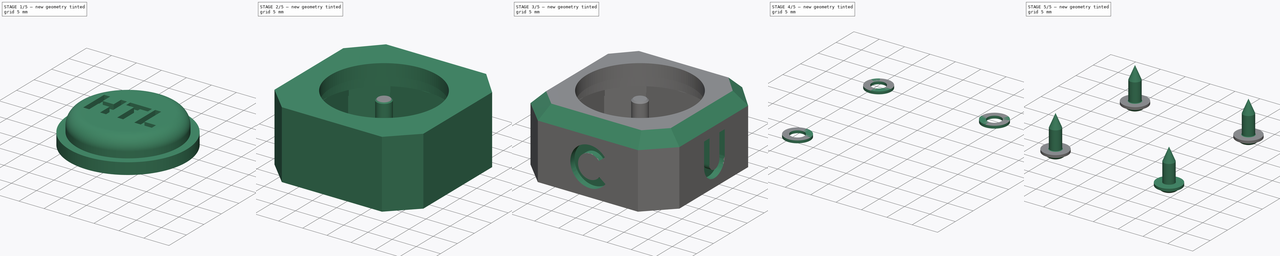
[diagram: build sequence overview — one tinted view per stage of 5, left to right]
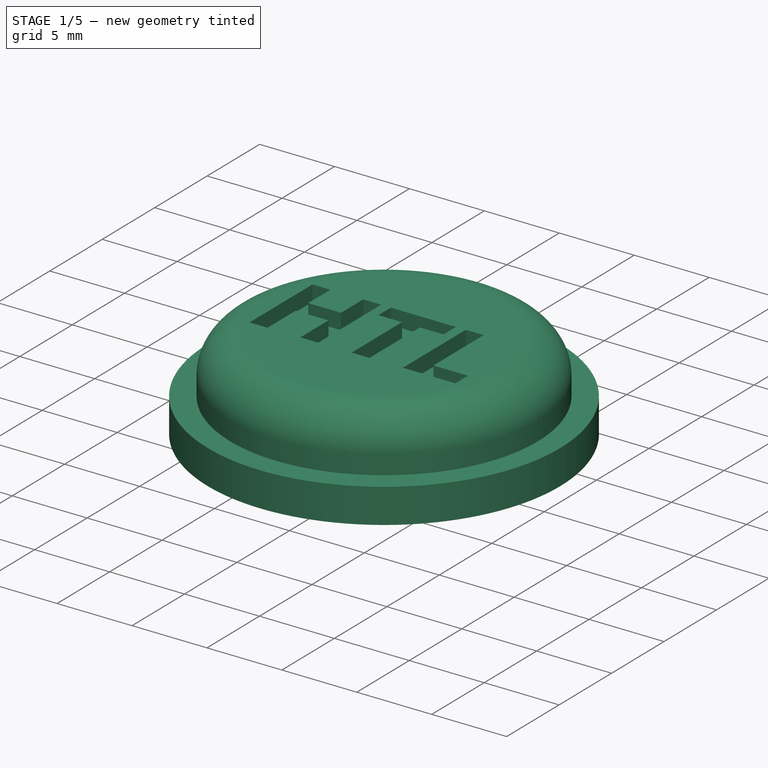
[diagram: stage 1 of 5 — iso view after this stage's code; geometry added in this stage tinted green]
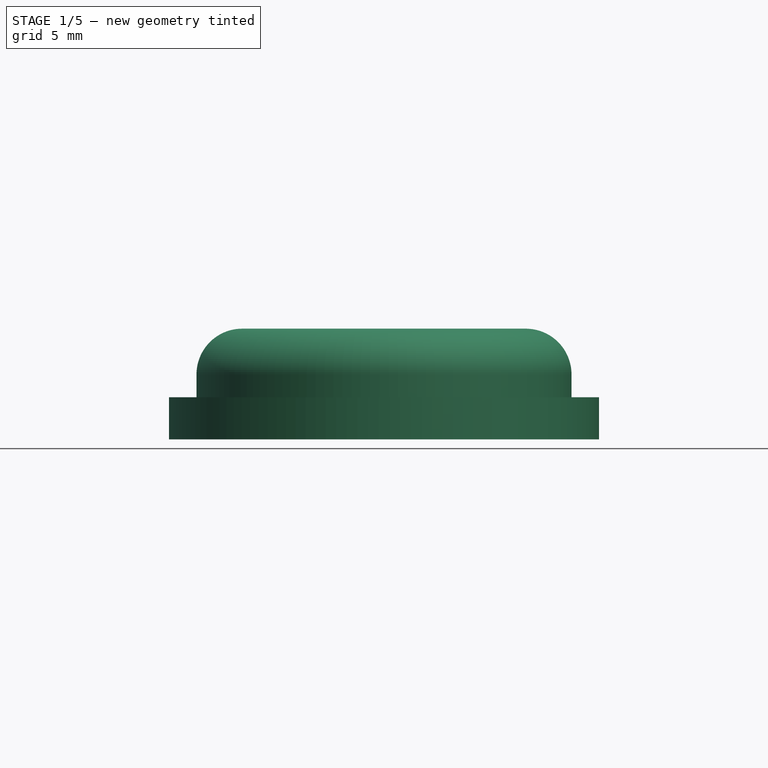
[diagram: stage 1 of 5 — front view after this stage's code; geometry added in this stage tinted green]
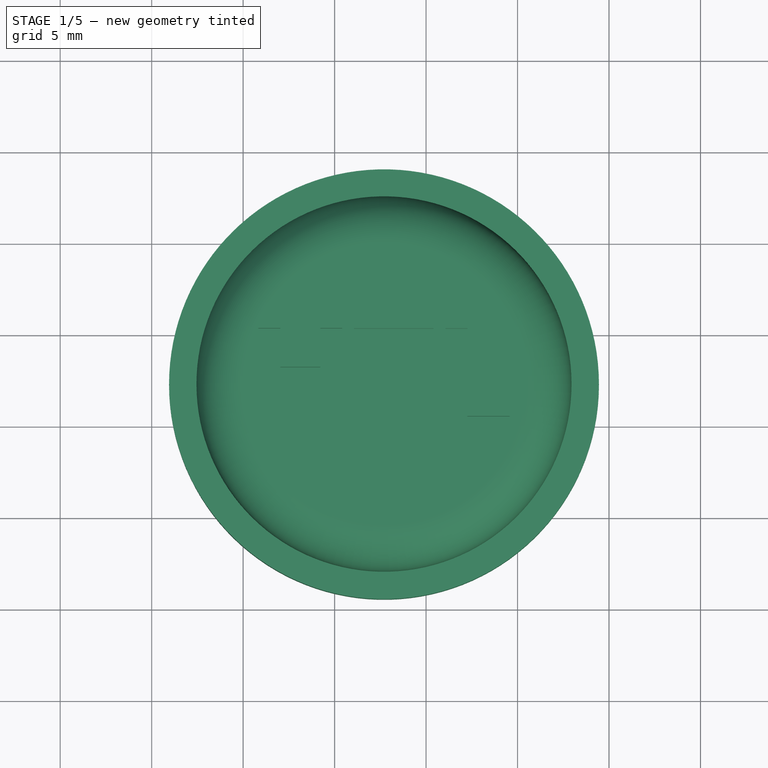
[diagram: stage 1 of 5 — top view after this stage's code; geometry added in this stage tinted green]
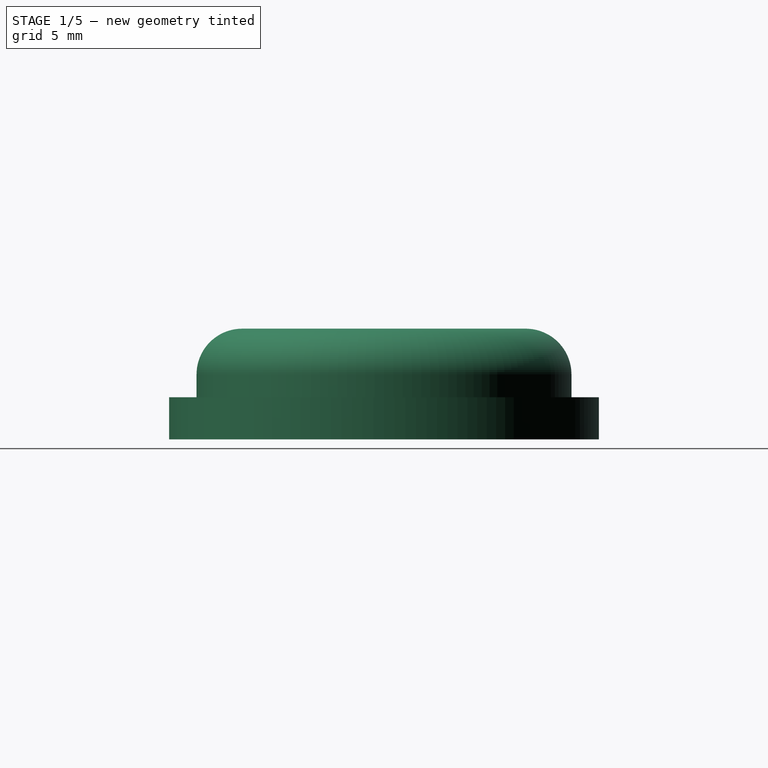
[diagram: stage 1 of 5 — right view after this stage's code; geometry added in this stage tinted green]
FCSTD DOCUMENT  (FreeCAD 1.0R39319 (Git))
Label: housing
License: Creative Commons Attribution-NonCommercial-ShareAlike 4.0
LicenseURL: https://creativecommons.org/licenses/by-nc-sa/4.0/
objects: Part::Feature×24, Sketcher::SketchObject×12, PartDesign::Pocket×12, App::Part×11, App::DocumentObjectGroupPython×10, Part::FeaturePython×9, Part::Part2DObjectPython×5, PartDesign::Pad×4, PartDesign::Body×3, Spreadsheet::Sheet×1, PartDesign::Chamfer×1, TechDraw::DrawSVGTemplate×1, TechDraw::DrawProjGroupItem×1, TechDraw::DrawPage×1, PartDesign::Fillet×1, PartDesign::CoordinateSystem×1
note: 120 computed .brp shape members not serialized (recipe doc carries the construction recipe); baked Part::Feature solids carry a one-line shape summary decoded from their .brp

FEATURE [Sketcher::SketchObject] Sketch008
  ArcFitTolerance = 1e-06
  AttachmentOffset = pos=(0,0,4.4) rot=(0,0,1;0rad)
  AttachmentSupport = -> [XY_Plane015]
  FullyConstrained = true
  MakeInternals = false
  MapMode = 5
  Placement = pos=(0,0,4.4) rot=(0,0,1;0rad)
  expr: .AttachmentOffset.Base.z = <<Parameter>>.Housing_Height - <<Parameter>>.Housing_Offset - <<Parameter>>.Housing_Floor_Thickness - <<Parameter>>.Housing_Tolerance
  expr: Constraints[0] = <<Parameter>>.PCB_Width / 2
  expr: Constraints[1] = <<Parameter>>.PCB_Length / 2
  expr: Constraints[2] = <<Parameter>>.Button_Inlay - <<Parameter>>.Button_Tolerance
  sketch-geometry (1):
    g0: Circle CenterX=12.7 CenterY=-12.7 CenterZ=0 NormalX=0 NormalY=0 NormalZ=1 AngleXU=0 Radius=11.75
  constraints (3):
    c: DistanceX(g-1,g0) = 12.7
    c: DistanceY(g0,g-1) = 12.7
    c: Diameter(g0) = 23.5
FEATURE [PartDesign::Pad] Pad002
  Direction = (0,0,1)
  Length = 2.3
  Length2 = 10
  Profile = -> Sketch008
  ReferenceAxis = -> Sketch008 [N_Axis]
  Refine = true
  Reversed = true
  Suppressed = false
  Type = 0
  expr: Length = <<Parameter>>.Button_Base - <<Parameter>>.Housing_Tolerance
FEATURE [Sketcher::SketchObject] Sketch009
  ArcFitTolerance = 1e-06
  AttachmentOffset = pos=(0,0,4.4) rot=(0,0,1;0rad)
  AttachmentSupport = -> [XY_Plane015]
  FullyConstrained = true
  MakeInternals = false
  MapMode = 5
  Placement = pos=(0,0,4.4) rot=(0,0,1;0rad)
  expr: .AttachmentOffset.Base.z = <<Parameter>>.Housing_Height - <<Parameter>>.Housing_Offset - <<Parameter>>.Housing_Floor_Thickness - <<Parameter>>.Housing_Tolerance
  expr: Constraints[0] = <<Parameter>>.PCB_Width / 2
  expr: Constraints[1] = <<Parameter>>.PCB_Length / 2
  expr: Constraints[2] = <<Parameter>>.Button_Diameter - <<Parameter>>.Button_Tolerance
  sketch-geometry (1):
    g0: Circle CenterX=12.7 CenterY=-12.7 CenterZ=0 NormalX=0 NormalY=0 NormalZ=1 AngleXU=0 Radius=10.25
  constraints (3):
    c: DistanceX(g-1,g0) = 12.7
    c: DistanceY(g0,g-1) = 12.7
    c: Diameter(g0) = 20.5
FEATURE [PartDesign::Pad] Pad003
  BaseFeature = -> Pad002
  Direction = (0,0,1)
  Length = 3.75
  Length2 = 10
  Profile = -> Sketch009
  ReferenceAxis = -> Sketch009 [N_Axis]
  Refine = true
  Suppressed = false
  Type = 0
  expr: Length = <<Parameter>>.Housing_Floor_Thickness * 3 / 2
FEATURE [Sketcher::SketchObject] Sketch010
  ArcFitTolerance = 1e-06
  AttachmentOffset = pos=(0,0,2.1) rot=(0,0,1;0rad)
  AttachmentSupport = -> [XY_Plane015]
  FullyConstrained = true
  MakeInternals = false
  MapMode = 5
  Placement = pos=(0,0,2.1) rot=(0,0,1;0rad)
  expr: .AttachmentOffset.Base.z = <<Parameter>>.Housing_Height - <<Parameter>>.Housing_Offset - <<Parameter>>.Housing_Floor_Thickness - <<Parameter>>.Button_Base
  expr: Constraints[0] = <<Parameter>>.PCB_Width / 2
  expr: Constraints[1] = <<Parameter>>.PCB_Length / 2
  expr: Constraints[2] = <<Parameter>>.Button_Shaft_Diameter
  sketch-geometry (1):
    g0: Circle CenterX=12.7 CenterY=-12.7 CenterZ=0 NormalX=0 NormalY=0 NormalZ=1 AngleXU=0 Radius=1.75
  constraints (3):
    c: DistanceX(g-1,g0) = 12.7
    c: DistanceY(g0,g-1) = 12.7
    c: Diameter(g0) = 3.5
FEATURE [Part::Part2DObjectPython] ShapeString004  # Draft 2D object (typed FeaturePython)
  FontFile = ./Black Future.otf
  Fuse = false
  Justification = 4
  JustificationReference = 0
  KeepLeftMargin = false
  MakeFace = true
  ObliqueAngle = 0
  Placement = pos=(12.7,-12.7,8.35) rot=(0,0,1;0rad)
  ScaleToSize = true
  Size = 6
  String = HTL
  Tracking = 0
  expr: .Placement.Base.x = <<Parameter>>.PCB_Width / 2
  expr: .Placement.Base.y = -<<Parameter>>.PCB_Length / 2
  expr: .Placement.Base.z = <<Parameter>>.Housing_Height - <<Parameter>>.Housing_Offset + <<Parameter>>.Housing_Floor_Thickness / 2
  expr: Size = <<Parameter>>.Housing_Text_HTL_Size
  expr: String = <<Parameter>>.Housing_Text_HTL
FEATURE [TechDraw::DrawSVGTemplate] Template
  Height = 210
  Orientation = 1
  Template = C:/Program Files/FreeCAD/data/Mod/TechDraw/Templates/Default_Template_A4_Landscape.svg
  Width = 297
FEATURE [TechDraw::DrawProjGroupItem] View
  CoarseView = false
  Direction = (0,0,1)
  Focus = 100
  HardHidden = false
  IsoCount = 0
  IsoHidden = false
  IsoVisible = false
  LockPosition = false
  Perspective = false
  Rotation = 0
  RotationVector = (1,0,0)
  ScaleType = 0
  ScrubCount = 0
  SeamHidden = false
  SeamVisible = false
  SmoothHidden = false
  SmoothVisible = true
  Source = -> [Body001]
  Type = 0
  X = 148.5
  XDirection = (1,0,0)
  Y = 105
FEATURE [TechDraw::DrawPage] Page  label="Acrylglass_Laser"
  KeepUpdated = true
  NextBalloonIndex = 1
  ProjectionType = 0
  Template = -> Template
  Views = -> [View]
FEATURE [PartDesign::Pocket] Pocket011
  BaseFeature = -> Pad003
  Direction = (0,0,-1)
  Length = 3.5
  Length2 = 5
  Profile = -> Sketch010
  ReferenceAxis = -> Sketch010 [N_Axis]
  Refine = true
  Reversed = true
  Suppressed = false
  Type = 0
  expr: Length = <<Parameter>>.Button_Shaft_Length
FEATURE [PartDesign::Fillet] Fillet
  Base = -> Pocket011 [Edge7]
  BaseFeature = -> Pocket011
  Radius = 2.5
  Refine = true
  SupportTransform = false
  Suppressed = false
  UseAllEdges = false
  expr: Radius = <<Parameter>>.Housing_Floor_Thickness
FEATURE [PartDesign::Pocket] Pocket012
  BaseFeature = -> Fillet
  Direction = (0,0,-1)
  Length = 1.25
  Length2 = 5
  Profile = -> ShapeString004
  ReferenceAxis = -> ShapeString004 [N_Axis]
  Refine = true
  Suppressed = false
  Type = 0
  expr: Length = <<Parameter>>.Text_Depth
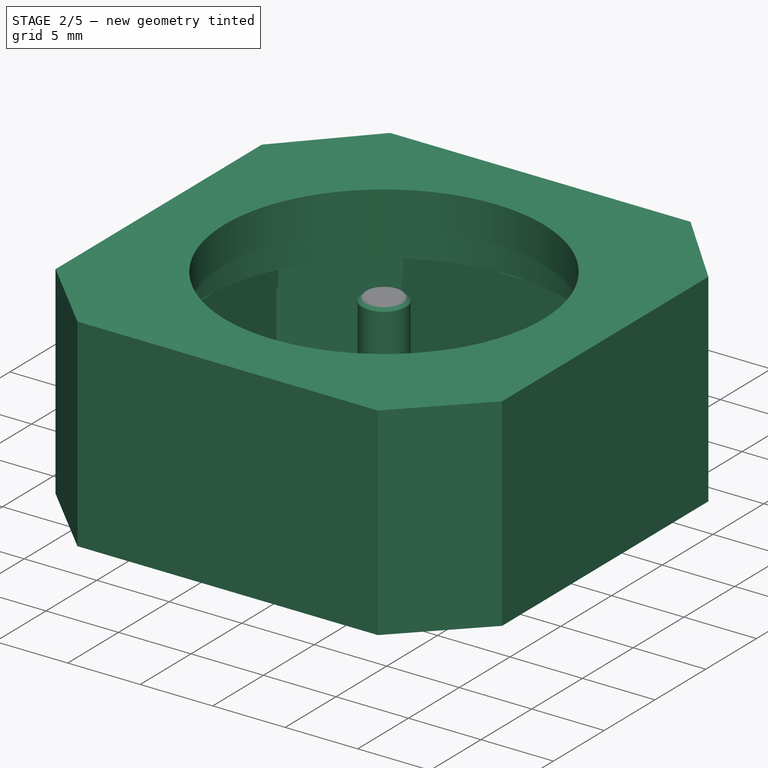
[diagram: stage 2 of 5 — iso view after this stage's code; geometry added in this stage tinted green]
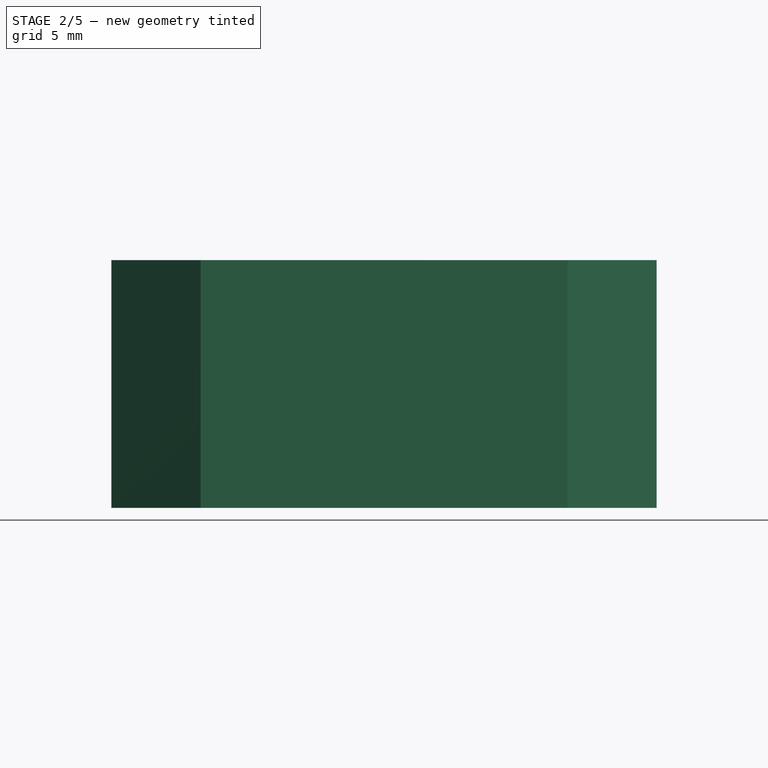
[diagram: stage 2 of 5 — front view after this stage's code; geometry added in this stage tinted green]
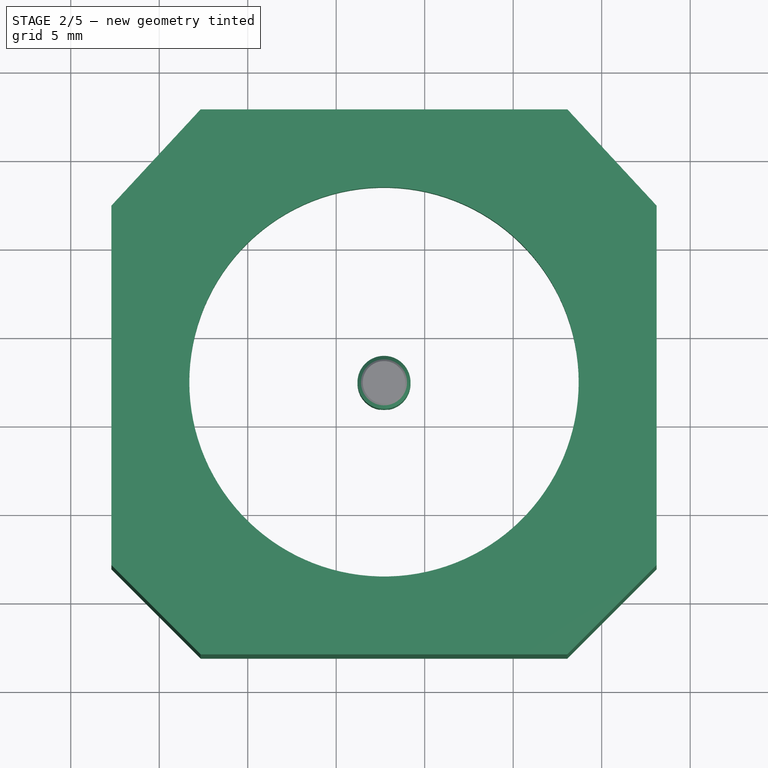
[diagram: stage 2 of 5 — top view after this stage's code; geometry added in this stage tinted green]
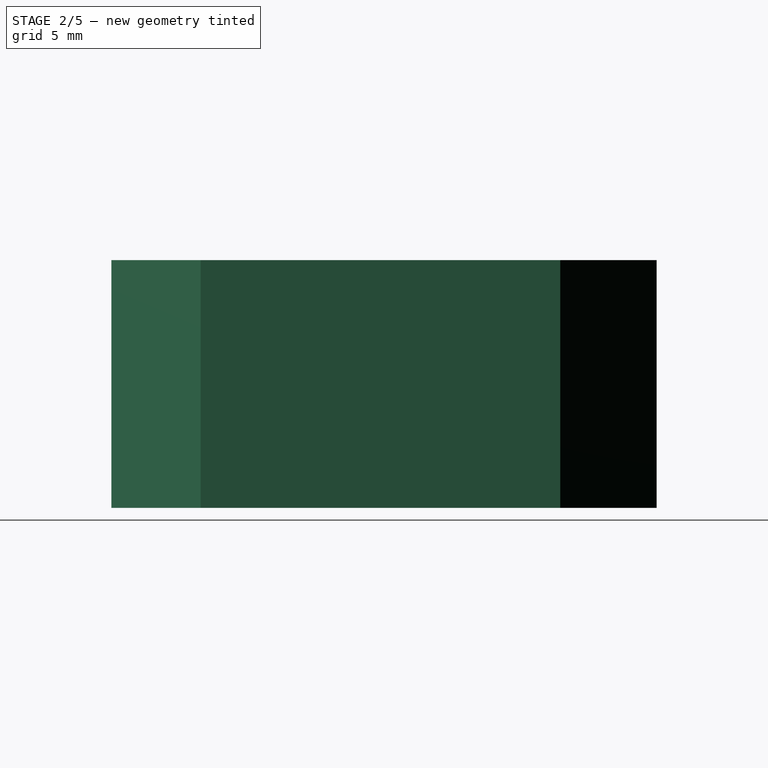
[diagram: stage 2 of 5 — right view after this stage's code; geometry added in this stage tinted green]
FEATURE [Spreadsheet::Sheet] Spreadsheet  label="Parameter"
  cells = A1='PCB; A2='Width; B2(PCB_Width)=25.4; A3='Length; B3(PCB_Length)=25.4; A4='Thickness; B4(PCB_Thickness)=2; A5='Corner; B5(PCB_Corner)=5.08; A7='Housing; D7='Button; G7='Hole; J7='Acrylglass; A8='Border; B8(Housing_Border)=2.5; D8='Base; E8(Button_Base)=2.5; G8='Diameter; H8(Hole_Diameter)=1.25; J8='Tolerance; K8(Acrylglass_Tolerance)=0.1; A9='Tolerance; B9(Housing_Tolerance)=0.2; D9='Diameter; E9(Button_Diameter)=22; G9='Depth; H9(Hole_Depth)==Housing_Offset; J9='Thickness; K9(Acrylglass_Thickness)=1.5; A10='Battery_Tolerance; B10(Battery_Tolerance)=0.2; D10='Inlay; E10(Button_Inlay)=25; A11='Floor_Thickness; B11(Housing_Floor_Thickness)=2.5; D11='Tolerance; E11(Button_Tolerance)=1.5; A12='Offset; B12(Housing_Offset)==5.2 + Acrylglass_Thickness + Battery_Tolerance; D12='Shaft_Diameter; E12(Button_Shaft_Diameter)=3.5; A13='Inlay; B13(Housing_Inlay)=1.25; D13='Shaft_Length; E13(Button_Shaft_Length)=3.5; A14='PCB_Inlay; B14(Housing_PCB_Inlay)=0.25; A15='Height; B15(Housing_Height)=14; A17='Text; B17(Housing_Text_C)='C; C17(Housing_Text_U)='U; D17(Housing_Text_B)='B; E17(Housing_Text_E)='E; F17(Housing_Text_HTL)='HTL; A18='Size; B18(Housing_Text_Size)=8; F18(Housing_Text_HTL_Size)=6; A19='Depth; B19(Text_Depth)=1.25
FEATURE [Sketcher::SketchObject] Sketch
  ArcFitTolerance = 1e-06
  AttachmentOffset = pos=(0,0,-6.9) rot=(0,0,1;0rad)
  AttachmentSupport = -> [XY_Plane012]
  FullyConstrained = true
  MakeInternals = false
  MapMode = 5
  Placement = pos=(0,0,-6.9) rot=(0,0,1;0rad)
  expr: .AttachmentOffset.Base.z = -<<Parameter>>.Housing_Offset
  expr: Constraints[16] = <<Parameter>>.PCB_Corner / 2 - <<Parameter>>.Housing_Tolerance
  expr: Constraints[17] = <<Parameter>>.PCB_Corner / 2 + <<Parameter>>.Housing_Tolerance
  expr: Constraints[18] = <<Parameter>>.Housing_Border + <<Parameter>>.Housing_Tolerance
  expr: Constraints[19] = <<Parameter>>.Housing_Border + <<Parameter>>.Housing_Tolerance
  expr: Constraints[20] = <<Parameter>>.PCB_Width - <<Parameter>>.PCB_Corner / 2 + <<Parameter>>.Housing_Tolerance
  expr: Constraints[21] = <<Parameter>>.PCB_Length + <<Parameter>>.Housing_Border + <<Parameter>>.Housing_Tolerance
  expr: Constraints[22] = <<Parameter>>.PCB_Length - <<Parameter>>.PCB_Corner / 2 + <<Parameter>>.Housing_Tolerance
  expr: Constraints[23] = <<Parameter>>.PCB_Width + <<Parameter>>.Housing_Border + <<Parameter>>.Housing_Tolerance
  sketch-geometry (8):
    g0: LineSegment StartX=-2.7 StartY=-2.74 StartZ=0 EndX=-2.7 EndY=-23.06 EndZ=0
    g1: LineSegment StartX=2.34 StartY=-28.1 StartZ=0 EndX=23.06 EndY=-28.1 EndZ=0
    g2: LineSegment StartX=28.1 StartY=-23.06 StartZ=0 EndX=28.1 EndY=-2.74 EndZ=0
    g3: LineSegment StartX=23.06 StartY=2.7 StartZ=0 EndX=2.34 EndY=2.7 EndZ=0
    g4: LineSegment StartX=-2.7 StartY=-2.74 StartZ=0 EndX=2.34 EndY=2.7 EndZ=0
    g5: LineSegment StartX=28.1 StartY=-2.74 StartZ=0 EndX=23.06 EndY=2.7 EndZ=0
    g6: LineSegment StartX=28.1 StartY=-23.06 StartZ=0 EndX=23.06 EndY=-28.1 EndZ=0
    g7: LineSegment StartX=-2.7 StartY=-23.06 StartZ=0 EndX=2.34 EndY=-28.1 EndZ=0
  constraints (24):
    c: Vertical(g0)
    c: Vertical(g2)
    c: Horizontal(g1)
    c: Horizontal(g3)
    c: Coincident(g0,g4)
    c: Coincident(g3,g4)
    c: Coincident(g3,g5)
    c: Coincident(g2,g5)
    c: Coincident(g2,g6)
    c: Coincident(g1,g6)
    c: Coincident(g1,g7)
    c: Coincident(g0,g7)
    c: Horizontal(g0,g2)
    c: Vertical(g3,g1)
    c: Horizontal(g0,g2)
    c: Vertical(g1,g3)
    c: DistanceX(g-1,g3) = 2.34
    c: DistanceY(g0,g-1) = 2.74
    c: DistanceY(g-1,g3) = 2.7
    c: DistanceX(g0,g-1) = 2.7
    c: DistanceX(g-1,g3) = 23.06
    c: DistanceY(g1,g-1) = 28.1
    c: DistanceY(g0,g-1) = 23.06
    c: DistanceX(g-1,g2) = 28.1
FEATURE [PartDesign::Pad] Pad
  Direction = (0,0,1)
  Length = 14
  Length2 = 10
  Profile = -> Sketch
  ReferenceAxis = -> Sketch [N_Axis]
  Refine = true
  Suppressed = false
  Type = 0
  expr: Length = <<Parameter>>.Housing_Height
FEATURE [Sketcher::SketchObject] Sketch001
  ArcFitTolerance = 1e-06
  AttachmentOffset = pos=(0,0,-6.9) rot=(0,0,1;0rad)
  AttachmentSupport = -> [XY_Plane012]
  FullyConstrained = true
  MakeInternals = false
  MapMode = 5
  Placement = pos=(0,0,-6.9) rot=(0,0,1;0rad)
  expr: .AttachmentOffset.Base.z = -<<Parameter>>.Housing_Offset
  expr: Constraints[12] = <<Parameter>>.Housing_Tolerance
  expr: Constraints[13] = <<Parameter>>.Housing_Tolerance
  expr: Constraints[18] = <<Parameter>>.PCB_Width - <<Parameter>>.PCB_Corner + <<Parameter>>.Housing_Tolerance
  expr: Constraints[19] = <<Parameter>>.PCB_Length - <<Parameter>>.PCB_Corner + <<Parameter>>.Housing_Tolerance
  expr: Constraints[20] = <<Parameter>>.PCB_Corner - <<Parameter>>.Housing_Tolerance
  expr: Constraints[21] = <<Parameter>>.PCB_Corner - <<Parameter>>.Housing_Tolerance
  expr: Constraints[22] = <<Parameter>>.PCB_Width + <<Parameter>>.Housing_Tolerance
  expr: Constraints[23] = <<Parameter>>.PCB_Width + <<Parameter>>.Housing_Tolerance
  sketch-geometry (8):
    g0: LineSegment StartX=-0.2 StartY=-4.88 StartZ=0 EndX=-0.2 EndY=-20.52 EndZ=0
    g1: LineSegment StartX=4.88 StartY=-25.6 StartZ=0 EndX=20.52 EndY=-25.6 EndZ=0
    g2: LineSegment StartX=25.6 StartY=-20.52 StartZ=0 EndX=25.6 EndY=-4.88 EndZ=0
    g3: LineSegment StartX=20.52 StartY=0.2 StartZ=0 EndX=4.88 EndY=0.2 EndZ=0
    g4: LineSegment StartX=-0.2 StartY=-4.88 StartZ=0 EndX=4.88 EndY=0.2 EndZ=0
    g5: LineSegment StartX=20.52 StartY=0.2 StartZ=0 EndX=25.6 EndY=-4.88 EndZ=0
    g6: LineSegment StartX=20.52 StartY=-25.6 StartZ=0 EndX=25.6 EndY=-20.52 EndZ=0
    g7: LineSegment StartX=4.88 StartY=-25.6 StartZ=0 EndX=-0.2 EndY=-20.52 EndZ=0
  constraints (24):
    c: Vertical(g0)
    c: Vertical(g2)
    c: Horizontal(g1)
    c: Horizontal(g3)
    c: Coincident(g0,g7)
    c: Coincident(g1,g7)
    c: Coincident(g1,g6)
    c: Coincident(g2,g6)
    c: Coincident(g3,g5)
    c: Coincident(g2,g5)
    c: Coincident(g3,g4)
    c: Coincident(g0,g4)
    c: DistanceX(g0,g-1) = 0.2
    c: DistanceY(g-1,g3) = 0.2
    c: Vertical(g3,g1)
    c: Vertical(g1,g3)
    c: Horizontal(g2,g0)
    c: Horizontal(g0,g2)
    c: DistanceX(g-1,g3) = 20.52
    c: DistanceY(g2,g-1) = 20.52
    c: DistanceX(g-1,g3) = 4.88
    c: DistanceY(g0,g-1) = 4.88
    c: DistanceY(g1,g-1) = 25.6
    c: DistanceX(g-1,g2) = 25.6
FEATURE [PartDesign::Pocket] Pocket
  BaseFeature = -> Pad
  Direction = (0,0,-1)
  Length = 6.9
  Length2 = 5
  Profile = -> Sketch001
  ReferenceAxis = -> Sketch001 [N_Axis]
  Refine = true
  Reversed = true
  Suppressed = false
  Type = 0
  expr: Length = <<Parameter>>.Housing_Offset
FEATURE [Sketcher::SketchObject] Sketch002
  ArcFitTolerance = 1e-06
  AttachmentSupport = -> [XY_Plane012]
  FullyConstrained = true
  MakeInternals = false
  MapMode = 5
  expr: Constraints[12] = <<Parameter>>.PCB_Corner + <<Parameter>>.Housing_PCB_Inlay
  expr: Constraints[13] = <<Parameter>>.Housing_PCB_Inlay
  expr: Constraints[14] = <<Parameter>>.PCB_Corner + <<Parameter>>.Housing_PCB_Inlay
  expr: Constraints[15] = <<Parameter>>.Housing_PCB_Inlay
  expr: Constraints[20] = <<Parameter>>.PCB_Length - <<Parameter>>.PCB_Corner - <<Parameter>>.Housing_PCB_Inlay
  expr: Constraints[21] = <<Parameter>>.PCB_Width - <<Parameter>>.PCB_Corner - <<Parameter>>.Housing_PCB_Inlay
  expr: Constraints[22] = <<Parameter>>.PCB_Length - <<Parameter>>.Housing_PCB_Inlay
  expr: Constraints[23] = <<Parameter>>.PCB_Width - <<Parameter>>.Housing_PCB_Inlay
  sketch-geometry (8):
    g0: LineSegment StartX=0.25 StartY=-5.33 StartZ=0 EndX=0.25 EndY=-20.07 EndZ=0
    g1: LineSegment StartX=5.33 StartY=-25.15 StartZ=0 EndX=20.07 EndY=-25.15 EndZ=0
    g2: LineSegment StartX=25.15 StartY=-20.07 StartZ=0 EndX=25.15 EndY=-5.33 EndZ=0
    g3: LineSegment StartX=20.07 StartY=-0.25 StartZ=0 EndX=5.33 EndY=-0.25 EndZ=0
    g4: LineSegment StartX=0.25 StartY=-5.33 StartZ=0 EndX=5.33 EndY=-0.25 EndZ=0
    g5: LineSegment StartX=20.07 StartY=-0.25 StartZ=0 EndX=25.15 EndY=-5.33 EndZ=0
    g6: LineSegment StartX=25.15 StartY=-20.07 StartZ=0 EndX=20.07 EndY=-25.15 EndZ=0
    g7: LineSegment StartX=5.33 StartY=-25.15 StartZ=0 EndX=0.25 EndY=-20.07 EndZ=0
  constraints (24):
    c: Vertical(g0)
    c: Vertical(g2)
    c: Horizontal(g1)
    c: Horizontal(g3)
    c: Coincident(g0,g4)
    c: Coincident(g3,g4)
    c: Coincident(g3,g5)
    c: Coincident(g2,g5)
    c: Coincident(g2,g6)
    c: Coincident(g1,g6)
    c: Coincident(g1,g7)
    c: Coincident(g0,g7)
    c: DistanceX(g-1,g3) = 5.33
    c: DistanceY(g3,g-1) = 0.25
    c: DistanceY(g0,g-1) = 5.33
    c: DistanceX(g-1,g0) = 0.25
    c: Vertical(g3,g1)
    c: Horizontal(g0,g2)
    c: Vertical(g3,g1)
    c: Horizontal(g0,g2)
    c: DistanceY(g0,g-1) = 20.07
    c: DistanceX(g-1,g3) = 20.07
    c: DistanceY(g1,g-1) = 25.15
    c: DistanceX(g-1,g2) = 25.15
FEATURE [PartDesign::Pocket] Pocket001
  BaseFeature = -> Pocket
  Direction = (0,0,-1)
  Length = 2.1
  Length2 = 5
  Profile = -> Sketch002
  ReferenceAxis = -> Sketch002 [N_Axis]
  Refine = true
  Reversed = true
  Suppressed = false
  Type = 0
  expr: Length = <<Parameter>>.Housing_Height - <<Parameter>>.Housing_Offset - <<Parameter>>.Housing_Floor_Thickness - <<Parameter>>.Button_Base
FEATURE [Sketcher::SketchObject] Sketch003
  ArcFitTolerance = 1e-06
  AttachmentOffset = pos=(0,0,7.1) rot=(0,0,1;0rad)
  AttachmentSupport = -> [XY_Plane012]
  FullyConstrained = true
  MakeInternals = false
  MapMode = 5
  Placement = pos=(0,0,7.1) rot=(0,0,1;0rad)
  expr: .AttachmentOffset.Base.z = <<Parameter>>.Housing_Height - <<Parameter>>.Housing_Offset
  expr: Constraints[0] = <<Parameter>>.PCB_Width / 2
  expr: Constraints[1] = <<Parameter>>.PCB_Length / 2
  expr: Constraints[2] = <<Parameter>>.Button_Diameter
  sketch-geometry (1):
    g0: Circle CenterX=12.7 CenterY=-12.7 CenterZ=0 NormalX=0 NormalY=0 NormalZ=1 AngleXU=0 Radius=11
  constraints (3):
    c: DistanceX(g-1,g0) = 12.7
    c: DistanceY(g0,g-1) = 12.7
    c: Diameter(g0) = 22
FEATURE [PartDesign::Pocket] Pocket002
  BaseFeature = -> Pocket001
  Direction = (0,0,-1)
  Length = 2.5
  Length2 = 5
  Profile = -> Sketch003
  ReferenceAxis = -> Sketch003 [N_Axis]
  Refine = true
  Suppressed = false
  Type = 0
  expr: Length = <<Parameter>>.Housing_Floor_Thickness
FEATURE [Sketcher::SketchObject] Sketch004
  ArcFitTolerance = 1e-06
  AttachmentOffset = pos=(0,0,4.6) rot=(0,0,1;0rad)
  AttachmentSupport = -> [XY_Plane012]
  FullyConstrained = true
  MakeInternals = false
  MapMode = 5
  Placement = pos=(0,0,4.6) rot=(0,0,1;0rad)
  expr: .AttachmentOffset.Base.z = <<Parameter>>.Housing_Height - <<Parameter>>.Housing_Offset - <<Parameter>>.Housing_Floor_Thickness
  expr: Constraints[0] = <<Parameter>>.PCB_Width / 2
  expr: Constraints[1] = <<Parameter>>.PCB_Length / 2
  expr: Constraints[2] = <<Parameter>>.Button_Inlay
  sketch-geometry (1):
    g0: Circle CenterX=12.7 CenterY=-12.7 CenterZ=0 NormalX=0 NormalY=0 NormalZ=1 AngleXU=0 Radius=12.5
  constraints (3):
    c: DistanceX(g-1,g0) = 12.7
    c: DistanceY(g0,g-1) = 12.7
    c: Diameter(g0) = 25
FEATURE [PartDesign::Pocket] Pocket003
  BaseFeature = -> Pocket002
  Direction = (0,0,-1)
  Length = 2.5
  Length2 = 5
  Profile = -> Sketch004
  ReferenceAxis = -> Sketch004 [N_Axis]
  Refine = true
  Suppressed = false
  Type = 0
  expr: Length = <<Parameter>>.Button_Base
FEATURE [PartDesign::Body] Body002  label="Button"
  AllowCompound = false
  Group = -> [Sketch008,Pad002,Sketch009,Pad003,Sketch010,ShapeString004,Pocket011,Fillet,Pocket012]
  Origin = -> Origin015
  Tip = -> Pocket012
FEATURE [Part::FeaturePython] Screw004  label="M3x5-Screw"  # WARN: FeaturePython — macro-defined, semantics opaque (R4)
  BaseObject = -> Body002 [Pocket012.Edge87]
  Diameter = 6
  Invert = true
  LeftHanded = false
  Length = 4
  LengthCustom = 5
  MatchOuter = false
  Offset = 1.5
  OffsetAngle = 0
  Placement = pos=(12.7,-12.7,0.6) rot=(-1,0,0;3.14159rad)
  Thread = false
  Type = 64
  expr: Offset = 1.5
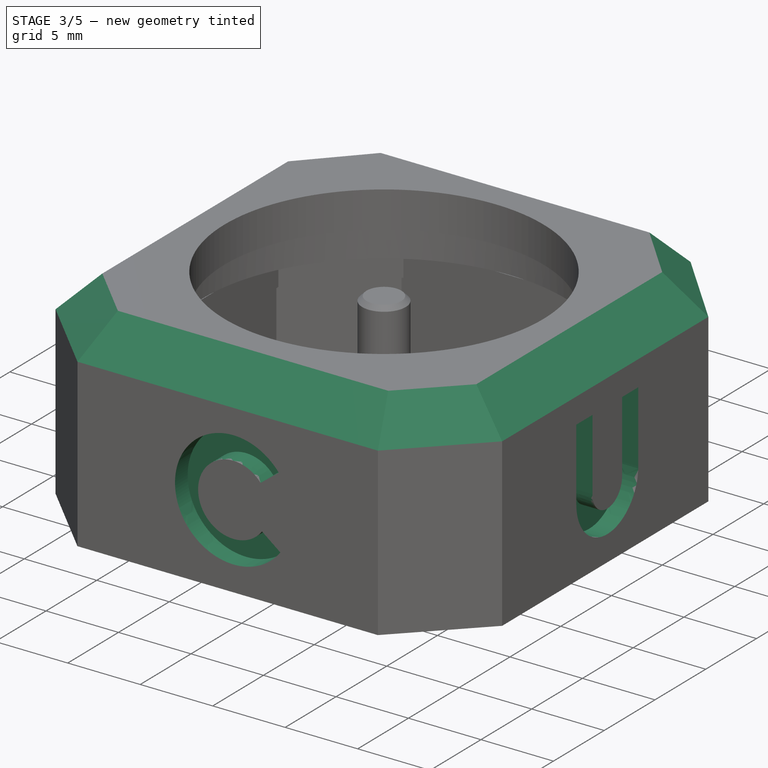
[diagram: stage 3 of 5 — iso view after this stage's code; geometry added in this stage tinted green]
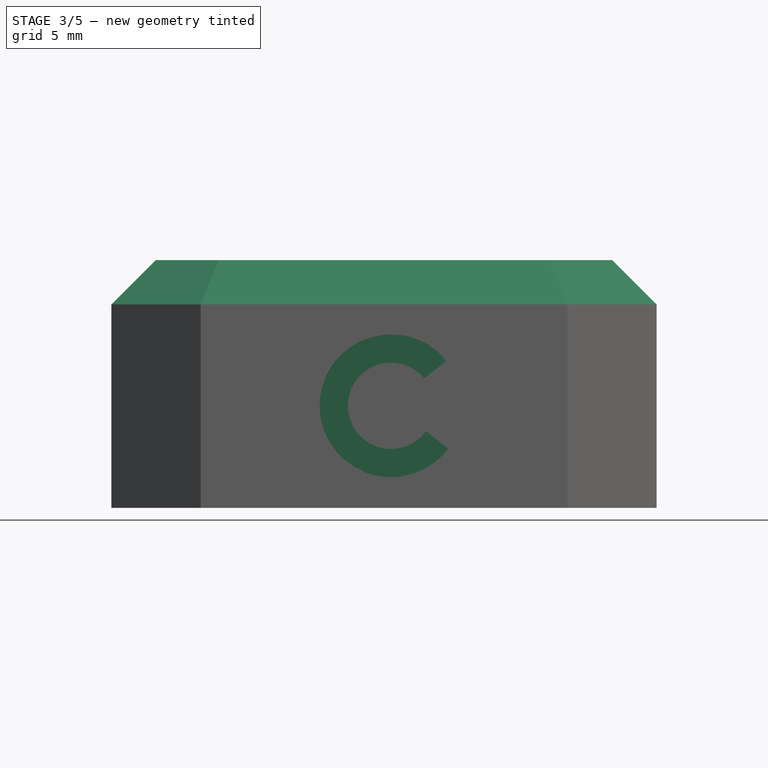
[diagram: stage 3 of 5 — front view after this stage's code; geometry added in this stage tinted green]
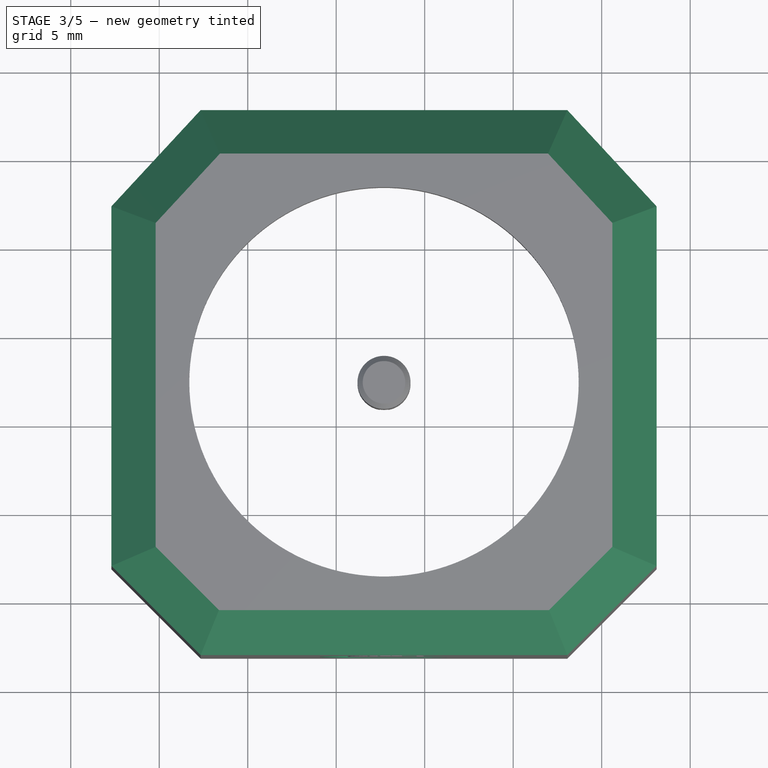
[diagram: stage 3 of 5 — top view after this stage's code; geometry added in this stage tinted green]
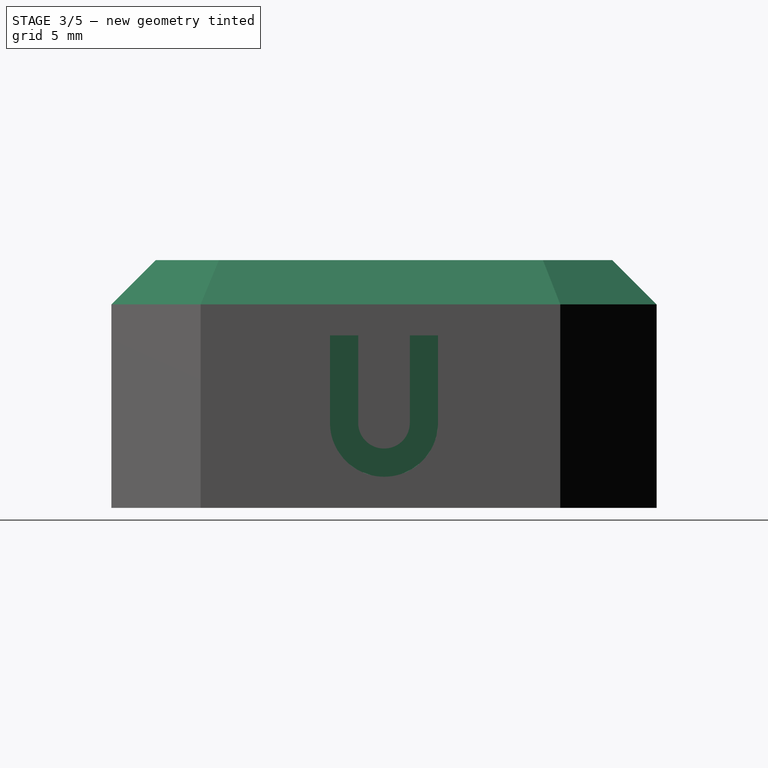
[diagram: stage 3 of 5 — right view after this stage's code; geometry added in this stage tinted green]
FEATURE [Sketcher::SketchObject] Sketch005
  ArcFitTolerance = 1e-06
  AttachmentOffset = pos=(0,0,-6.9) rot=(0,0,1;0rad)
  AttachmentSupport = -> [XY_Plane012]
  FullyConstrained = true
  MakeInternals = false
  MapMode = 5
  Placement = pos=(0,0,-6.9) rot=(0,0,1;0rad)
  expr: .AttachmentOffset.Base.z = -<<Parameter>>.Housing_Offset
  expr: Constraints[10] = <<Parameter>>.PCB_Width - <<Parameter>>.PCB_Corner / 2 + <<Parameter>>.Housing_Border / 2
  expr: Constraints[11] = <<Parameter>>.PCB_Length - <<Parameter>>.PCB_Corner / 2 + <<Parameter>>.Housing_Border / 2
  expr: Constraints[7] = <<Parameter>>.Hole_Diameter
  expr: Constraints[8] = <<Parameter>>.PCB_Corner / 2 - <<Parameter>>.Housing_Border / 2
  expr: Constraints[9] = <<Parameter>>.PCB_Corner / 2 - <<Parameter>>.Housing_Border / 2
  sketch-geometry (4):
    g0: Circle CenterX=1.29 CenterY=-1.29 CenterZ=0 NormalX=0 NormalY=0 NormalZ=1 AngleXU=0 Radius=0.625
    g1: Circle CenterX=24.11 CenterY=-1.29 CenterZ=0 NormalX=0 NormalY=0 NormalZ=1 AngleXU=0 Radius=0.625
    g2: Circle CenterX=24.11 CenterY=-24.11 CenterZ=0 NormalX=0 NormalY=0 NormalZ=1 AngleXU=0 Radius=0.625
    g3: Circle CenterX=1.29 CenterY=-24.11 CenterZ=0 NormalX=0 NormalY=0 NormalZ=1 AngleXU=0 Radius=0.625
  constraints (12):
    c: Vertical(g0,g3)
    c: Vertical(g1,g2)
    c: Horizontal(g0,g1)
    c: Horizontal(g3,g2)
    c: Equal(g0,g1)
    c: Equal(g1,g3)
    c: Equal(g3,g2)
    c: Diameter(g0) = 1.25
    c: DistanceX(g-1,g0) = 1.29
    c: DistanceY(g0,g-1) = 1.29
    c: DistanceX(g-1,g1) = 24.11
    c: DistanceY(g3,g-1) = 24.11
FEATURE [PartDesign::Pocket] Pocket004
  BaseFeature = -> Pocket003
  Direction = (0,0,-1)
  Length = 6.9
  Length2 = 5
  Profile = -> Sketch005
  ReferenceAxis = -> Sketch005 [N_Axis]
  Refine = true
  Reversed = true
  Suppressed = false
  Type = 0
  expr: Length = <<Parameter>>.Hole_Depth
FEATURE [Sketcher::SketchObject] Sketch006
  ArcFitTolerance = 1e-06
  AttachmentOffset = pos=(0,0,-6.9) rot=(0,0,1;0rad)
  AttachmentSupport = -> [XY_Plane012]
  FullyConstrained = true
  MakeInternals = false
  MapMode = 5
  Placement = pos=(0,0,-6.9) rot=(0,0,1;0rad)
  expr: .AttachmentOffset.Base.z = -<<Parameter>>.Housing_Offset
  expr: Constraints[23] = <<Parameter>>.Housing_Tolerance
  expr: Constraints[24] = <<Parameter>>.Housing_Inlay
  expr: Constraints[25] = <<Parameter>>.PCB_Corner - <<Parameter>>.Housing_Tolerance
  expr: Constraints[27] = <<Parameter>>.PCB_Corner - <<Parameter>>.Housing_Tolerance
  expr: Constraints[28] = <<Parameter>>.Housing_Tolerance
  expr: Constraints[29] = <<Parameter>>.PCB_Width - (<<Parameter>>.PCB_Corner - <<Parameter>>.Housing_Tolerance) * 2
  expr: Constraints[32] = <<Parameter>>.PCB_Width + <<Parameter>>.Housing_Tolerance
  expr: Constraints[36] = <<Parameter>>.PCB_Length - (<<Parameter>>.PCB_Corner - <<Parameter>>.Housing_Tolerance) * 2
  expr: Constraints[38] = <<Parameter>>.PCB_Corner - <<Parameter>>.Housing_Tolerance
  expr: Constraints[40] = <<Parameter>>.Housing_Inlay
  expr: Constraints[41] = <<Parameter>>.PCB_Corner
  expr: Constraints[42] = <<Parameter>>.PCB_Corner
  expr: Constraints[44] = <<Parameter>>.PCB_Corner - <<Parameter>>.Housing_Tolerance
  expr: Constraints[45] = <<Parameter>>.Housing_Inlay
  expr: Constraints[46] = <<Parameter>>.Housing_Inlay
  expr: Constraints[47] = <<Parameter>>.Housing_Tolerance
  sketch-geometry (16):
    g0: LineSegment StartX=-1.45 StartY=-4.88 StartZ=0 EndX=-0.2 EndY=-4.88 EndZ=0
    g1: LineSegment StartX=-0.2 StartY=-4.88 StartZ=0 EndX=4.88 EndY=0.2 EndZ=0
    g2: LineSegment StartX=4.88 StartY=0.2 StartZ=0 EndX=4.88 EndY=1.45 EndZ=0
    g3: LineSegment StartX=4.88 StartY=1.45 StartZ=0 EndX=20.52 EndY=1.45 EndZ=0
    g4: LineSegment StartX=20.52 StartY=1.45 StartZ=0 EndX=20.52 EndY=0.2 EndZ=0
    g5: LineSegment StartX=20.52 StartY=0.2 StartZ=0 EndX=25.6 EndY=-4.88 EndZ=0
    g6: LineSegment StartX=25.6 StartY=-4.88 StartZ=0 EndX=26.85 EndY=-4.88 EndZ=0
    g7: LineSegment StartX=26.85 StartY=-4.88 StartZ=0 EndX=26.85 EndY=-20.52 EndZ=0
    g8: LineSegment StartX=26.85 StartY=-20.52 StartZ=0 EndX=25.6 EndY=-20.52 EndZ=0
    g9: LineSegment StartX=25.6 StartY=-20.52 StartZ=0 EndX=20.52 EndY=-25.6 EndZ=0
    g10: LineSegment StartX=20.52 StartY=-25.6 StartZ=0 EndX=20.52 EndY=-26.85 EndZ=0
    g11: LineSegment StartX=20.52 StartY=-26.85 StartZ=0 EndX=4.88 EndY=-26.85 EndZ=0
    g12: LineSegment StartX=4.88 StartY=-26.85 StartZ=0 EndX=4.88 EndY=-25.6 EndZ=0
    g13: LineSegment StartX=4.88 StartY=-25.6 StartZ=0 EndX=-0.2 EndY=-20.5378 EndZ=0
    g14: LineSegment StartX=-0.2 StartY=-20.5378 StartZ=0 EndX=-1.45 EndY=-20.5378 EndZ=0
    g15: LineSegment StartX=-1.45 StartY=-20.5378 StartZ=0 EndX=-1.45 EndY=-4.88 EndZ=0
  constraints (48):
    c: Horizontal(g0)
    c: Coincident(g0,g1)
    c: Coincident(g1,g2)
    c: Coincident(g2,g3)
    c: Horizontal(g3)
    c: Coincident(g3,g4)
    c: Coincident(g4,g5)
    c: Coincident(g5,g6)
    c: Coincident(g6,g7)
    c: Vertical(g7)
    c: Coincident(g7,g8)
    c: Coincident(g8,g9)
    c: Coincident(g9,g10)
    c: Vertical(g10)
    c: Coincident(g10,g11)
    c: Horizontal(g11)
    c: Coincident(g11,g12)
    c: Coincident(g12,g13)
    c: Coincident(g13,g14)
    c: Horizontal(g14)
    c: Coincident(g14,g15)
    c: Coincident(g15,g0)
    c: Vertical(g15)
    c: DistanceY(g-1,g1) = 0.2
    c: DistanceY(g1,g2) = 1.25
    c: DistanceX(g-1,g1) = 4.88
    c: Parallel(g-2,g2)
    c: DistanceY(g0,g-1) = 4.88
    c: DistanceX(g0,g-1) = 0.2
    c: DistanceX(g3,g3) = 15.64
    c: Parallel(g-2,g4)
    c: Equal(g2,g4)
    c: DistanceX(g-1,g5) = 25.6
    c: Equal(g4,g6)
    c: Parallel(g6,g-1)
    c: Equal(g6,g8)
    c: DistanceY(g7,g7) = 15.64
    c: Parallel(g8,g-1)
    c: DistanceY(g6,g-1) = 4.88
    c: Parallel(g10,g12)
    c: DistanceY(g10,g10) = 1.25
    c: DistanceY(g9,g8) = 5.08
    c: DistanceX(g9,g8) = 5.08
    c: Equal(g3,g11)
    c: DistanceX(g-1,g11) = 4.88
    c: DistanceY(g12,g12) = 1.25
    c: DistanceX(g14,g14) = 1.25
    c: DistanceX(g13,g-1) = 0.2
FEATURE [PartDesign::Pocket] Pocket005
  BaseFeature = -> Pocket004
  Direction = (0,0,-1)
  Length = 1.5
  Length2 = 5
  Profile = -> Sketch006
  ReferenceAxis = -> Sketch006 [N_Axis]
  Refine = true
  Reversed = true
  Suppressed = false
  Type = 0
  expr: Length = <<Parameter>>.Acrylglass_Thickness
FEATURE [PartDesign::Body] Body001  label="Acrylglass"
  AllowCompound = false
  Group = -> [Sketch007,Pad001]
  Origin = -> Origin013
  Tip = -> Pad001
FEATURE [PartDesign::Chamfer] Chamfer
  Angle = 45
  Base = -> Pocket005 [Edge4,Edge7,Edge36,Edge38,Edge40,Edge39,Edge37,Edge10]
  BaseFeature = -> Pocket005
  ChamferType = 0
  FlipDirection = false
  Refine = true
  Size = 2.5
  Size2 = 1
  SupportTransform = false
  Suppressed = false
  UseAllEdges = false
  expr: Size = <<Parameter>>.Housing_Border
FEATURE [Part::Part2DObjectPython] ShapeString  # Draft 2D object (typed FeaturePython)
  FontFile = ./Black Future.otf
  Fuse = false
  Justification = 4
  JustificationReference = 0
  KeepLeftMargin = false
  MakeFace = true
  ObliqueAngle = 0
  Placement = pos=(12.7,-28.1,-1.15) rot=(1,0,0;1.5708rad)
  ScaleToSize = true
  Size = 8
  String = C
  Tracking = 0
  expr: .Placement.Base.x = <<Parameter>>.PCB_Width / 2
  expr: .Placement.Base.y = -(<<Parameter>>.PCB_Length + <<Parameter>>.Housing_Border + <<Parameter>>.Housing_Tolerance)
  expr: .Placement.Base.z = (<<Parameter>>.Housing_Height - <<Parameter>>.Housing_Border) / 2 - <<Parameter>>.Housing_Offset
  expr: Size = <<Parameter>>.Housing_Text_Size
  expr: String = <<Parameter>>.Housing_Text_C
FEATURE [Part::Part2DObjectPython] ShapeString001  # Draft 2D object (typed FeaturePython)
  FontFile = ./Black Future.otf
  Fuse = false
  Justification = 4
  JustificationReference = 0
  KeepLeftMargin = false
  MakeFace = true
  ObliqueAngle = 0
  Placement = pos=(28.1,-12.7,-1.15) rot=(0.57735,0.57735,0.57735;2.0944rad)
  ScaleToSize = true
  Size = 8
  String = U
  Tracking = 0
  expr: .Placement.Base.x = <<Parameter>>.PCB_Width + <<Parameter>>.Housing_Border + <<Parameter>>.Housing_Tolerance
  expr: .Placement.Base.y = -<<Parameter>>.PCB_Length / 2
  expr: .Placement.Base.z = (<<Parameter>>.Housing_Height - <<Parameter>>.Housing_Border) / 2 - <<Parameter>>.Housing_Offset
  expr: Size = <<Parameter>>.Housing_Text_Size
  expr: String = <<Parameter>>.Housing_Text_U
FEATURE [Part::Part2DObjectPython] ShapeString002  # Draft 2D object (typed FeaturePython)
  FontFile = ./Black Future.otf
  Fuse = false
  Justification = 4
  JustificationReference = 0
  KeepLeftMargin = false
  MakeFace = true
  ObliqueAngle = 0
  Placement = pos=(12.7,2.7,-1.15) rot=(0,0.707107,0.707107;3.14159rad)
  ScaleToSize = true
  Size = 8
  String = B
  Tracking = 0
  expr: .Placement.Base.x = <<Parameter>>.PCB_Width / 2
  expr: .Placement.Base.y = <<Parameter>>.Housing_Border + <<Parameter>>.Housing_Tolerance
  expr: .Placement.Base.z = (<<Parameter>>.Housing_Height - <<Parameter>>.Housing_Border) / 2 - <<Parameter>>.Housing_Offset
  expr: Size = <<Parameter>>.Housing_Text_Size
  expr: String = <<Parameter>>.Housing_Text_B
FEATURE [Part::Part2DObjectPython] ShapeString003  # Draft 2D object (typed FeaturePython)
  FontFile = ./Black Future.otf
  Fuse = false
  Justification = 4
  JustificationReference = 0
  KeepLeftMargin = false
  MakeFace = true
  ObliqueAngle = 0
  Placement = pos=(-2.7,-12.7,-1.15) rot=(0.57735,-0.57735,-0.57735;2.0944rad)
  ScaleToSize = true
  Size = 8
  String = E
  Tracking = 0
  expr: .Placement.Base.x = -(<<Parameter>>.Housing_Border + <<Parameter>>.Housing_Tolerance)
  expr: .Placement.Base.y = -<<Parameter>>.PCB_Width / 2
  expr: .Placement.Base.z = (<<Parameter>>.Housing_Height - <<Parameter>>.Housing_Border) / 2 - <<Parameter>>.Housing_Offset
  expr: Size = <<Parameter>>.Housing_Text_Size
  expr: String = <<Parameter>>.Housing_Text_E
FEATURE [PartDesign::Pocket] Pocket006
  BaseFeature = -> Chamfer
  Direction = (0,1,0)
  Length = 1.25
  Length2 = 5
  Profile = -> ShapeString
  ReferenceAxis = -> ShapeString [N_Axis]
  Refine = true
  Suppressed = false
  Type = 0
  expr: Length = <<Parameter>>.Text_Depth
FEATURE [PartDesign::Pocket] Pocket007
  BaseFeature = -> Pocket006
  Direction = (-1,-1e-16,1e-16)
  Length = 1.25
  Length2 = 5
  Profile = -> ShapeString001
  ReferenceAxis = -> ShapeString001 [N_Axis]
  Refine = true
  Suppressed = false
  Type = 0
  expr: Length = <<Parameter>>.Text_Depth
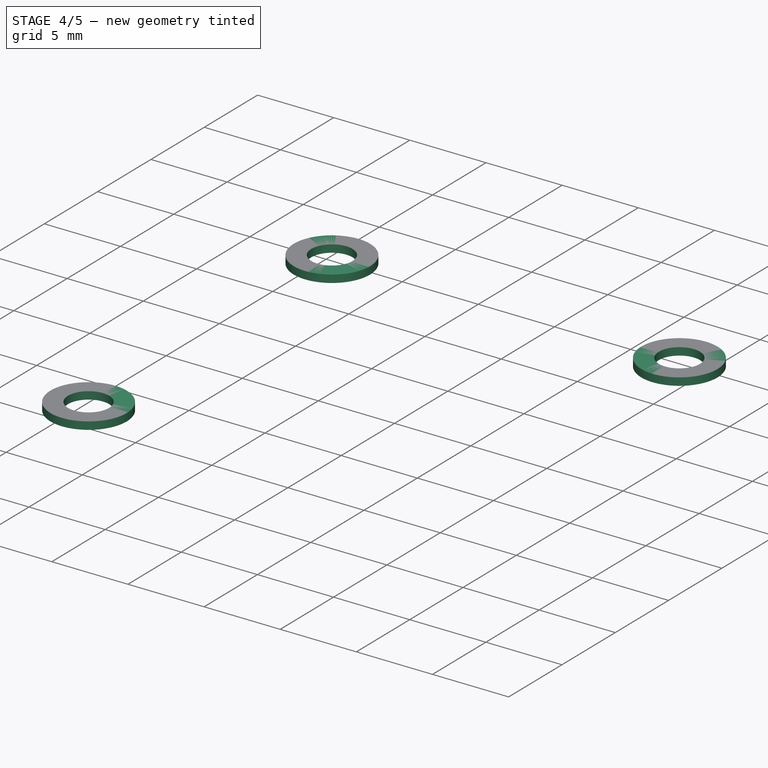
[diagram: stage 4 of 5 — iso view after this stage's code; geometry added in this stage tinted green]
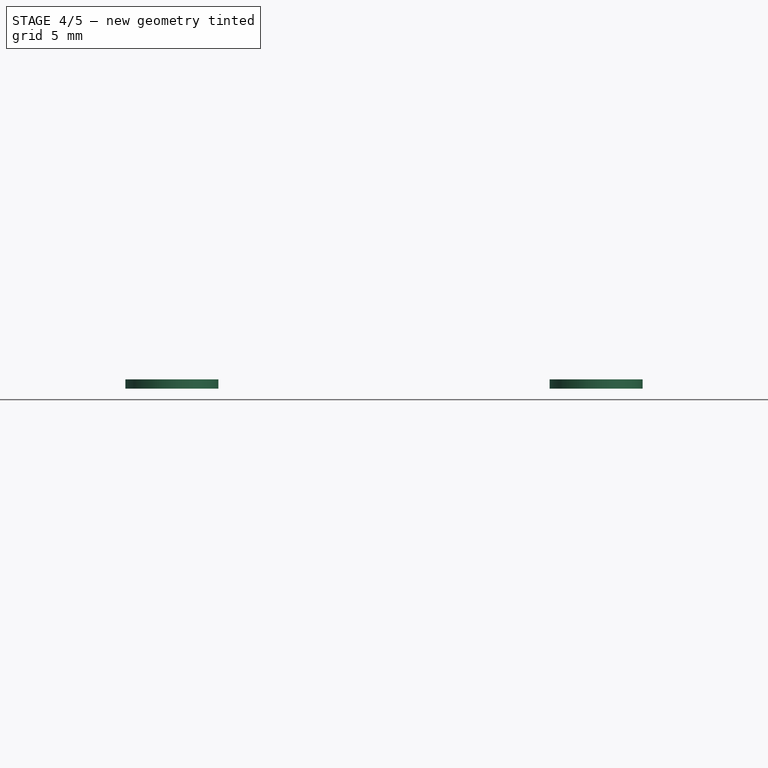
[diagram: stage 4 of 5 — front view after this stage's code; geometry added in this stage tinted green]
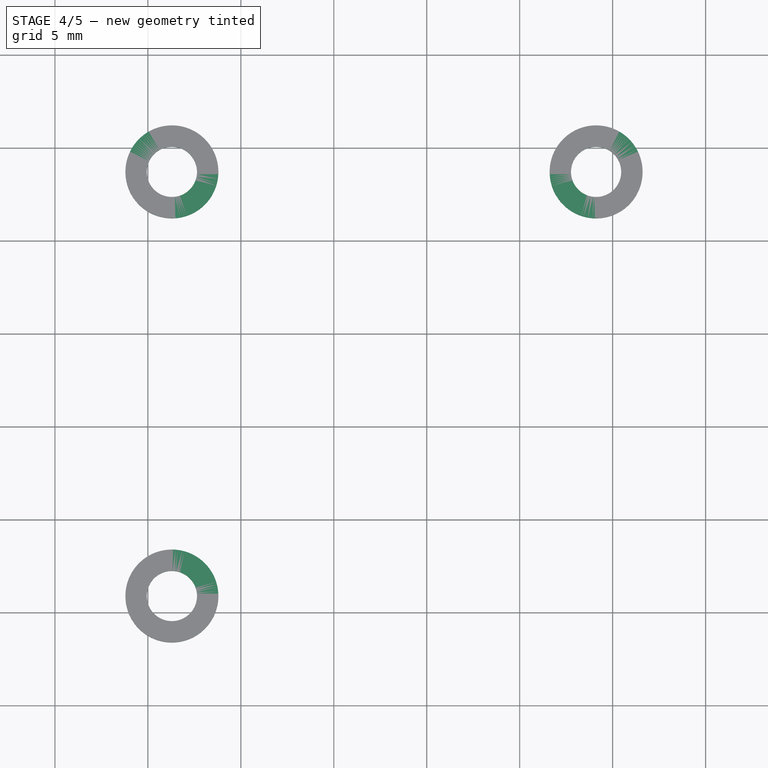
[diagram: stage 4 of 5 — top view after this stage's code; geometry added in this stage tinted green]
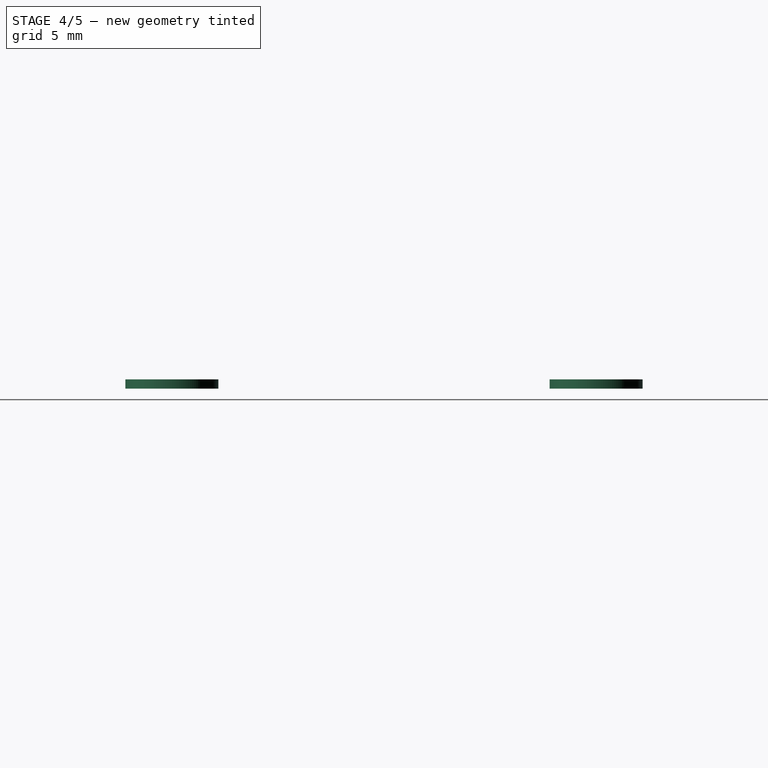
[diagram: stage 4 of 5 — right view after this stage's code; geometry added in this stage tinted green]
FEATURE [Sketcher::SketchObject] Sketch007
  ArcFitTolerance = 1e-06
  AttachmentOffset = pos=(0,0,-5.4) rot=(0,0,1;0rad)
  AttachmentSupport = -> [XY_Plane013]
  FullyConstrained = true
  MakeInternals = false
  MapMode = 5
  Placement = pos=(0,0,-5.4) rot=(0,0,1;0rad)
  expr: .AttachmentOffset.Base.z = -<<Parameter>>.Housing_Offset + <<Parameter>>.Acrylglass_Thickness
  expr: Constraints[26] = <<Parameter>>.Acrylglass_Tolerance
  expr: Constraints[27] = <<Parameter>>.Housing_Inlay
  expr: Constraints[28] = <<Parameter>>.PCB_Width - (<<Parameter>>.PCB_Corner - <<Parameter>>.Acrylglass_Tolerance) * 2
  expr: Constraints[29] = <<Parameter>>.PCB_Corner - <<Parameter>>.Acrylglass_Tolerance
  expr: Constraints[30] = <<Parameter>>.Acrylglass_Tolerance
  expr: Constraints[31] = <<Parameter>>.PCB_Corner - <<Parameter>>.Acrylglass_Tolerance
  expr: Constraints[32] = <<Parameter>>.Housing_Inlay
  expr: Constraints[33] = <<Parameter>>.PCB_Length - (<<Parameter>>.PCB_Corner - <<Parameter>>.Acrylglass_Tolerance) * 2
  expr: Constraints[43] = <<Parameter>>.PCB_Width + <<Parameter>>.Acrylglass_Tolerance
  expr: Constraints[44] = <<Parameter>>.PCB_Corner - <<Parameter>>.Acrylglass_Tolerance
  expr: Constraints[45] = <<Parameter>>.PCB_Corner - <<Parameter>>.Acrylglass_Tolerance
  expr: Constraints[46] = <<Parameter>>.PCB_Length + <<Parameter>>.Acrylglass_Tolerance
  expr: Constraints[47] = <<Parameter>>.PCB_Width + <<Parameter>>.Acrylglass_Tolerance
  sketch-geometry (16):
    g0: LineSegment StartX=-1.35 StartY=-4.98 StartZ=0 EndX=-0.1 EndY=-4.98 EndZ=0
    g1: LineSegment StartX=-0.1 StartY=-4.98 StartZ=0 EndX=4.98 EndY=0.1 EndZ=0
    g2: LineSegment StartX=4.98 StartY=0.1 StartZ=0 EndX=4.98 EndY=1.35 EndZ=0
    g3: LineSegment StartX=4.98 StartY=1.35 StartZ=0 EndX=20.42 EndY=1.35 EndZ=0
    g4: LineSegment StartX=20.42 StartY=1.35 StartZ=0 EndX=20.42 EndY=0.1 EndZ=0
    g5: LineSegment StartX=20.42 StartY=0.1 StartZ=0 EndX=25.5 EndY=-4.98 EndZ=0
    g6: LineSegment StartX=25.5 StartY=-4.98 StartZ=0 EndX=26.75 EndY=-4.98 EndZ=0
    g7: LineSegment StartX=26.75 StartY=-4.98 StartZ=0 EndX=26.75 EndY=-20.42 EndZ=0
    g8: LineSegment StartX=26.75 StartY=-20.42 StartZ=0 EndX=25.5 EndY=-20.42 EndZ=0
    g9: LineSegment StartX=25.5 StartY=-20.42 StartZ=0 EndX=20.42 EndY=-25.5 EndZ=0
    g10: LineSegment StartX=20.42 StartY=-25.5 StartZ=0 EndX=20.42 EndY=-26.75 EndZ=0
    g11: LineSegment StartX=20.42 StartY=-26.75 StartZ=0 EndX=4.98 EndY=-26.75 EndZ=0
    g12: LineSegment StartX=4.98 StartY=-26.75 StartZ=0 EndX=4.98 EndY=-25.5 EndZ=0
    g13: LineSegment StartX=4.98 StartY=-25.5 StartZ=0 EndX=-0.1 EndY=-20.42 EndZ=0
    g14: LineSegment StartX=-0.1 StartY=-20.42 StartZ=0 EndX=-1.35 EndY=-20.42 EndZ=0
    g15: LineSegment StartX=-1.35 StartY=-20.42 StartZ=0 EndX=-1.35 EndY=-4.98 EndZ=0
  constraints (48):
    c: Horizontal(g0)
    c: Coincident(g0,g1)
    c: Coincident(g1,g2)
    c: Vertical(g2)
    c: Coincident(g2,g3)
    c: Horizontal(g3)
    c: Coincident(g3,g4)
    c: Vertical(g4)
    c: Coincident(g4,g5)
    c: Coincident(g5,g6)
    c: Horizontal(g6)
    c: Coincident(g6,g7)
    c: Vertical(g7)
    c: Coincident(g7,g8)
    c: Horizontal(g8)
    c: Coincident(g8,g9)
    c: Coincident(g9,g10)
    c: Coincident(g10,g11)
    c: Horizontal(g11)
    c: Coincident(g11,g12)
    c: Vertical(g12)
    c: Coincident(g12,g13)
    c: Coincident(g13,g14)
    c: Coincident(g14,g15)
    c: Coincident(g15,g0)
    c: Vertical(g15)
    c: DistanceY(g-1,g1) = 0.1
    c: DistanceY(g2,g2) = 1.25
    c: DistanceX(g3,g3) = 15.44
    c: DistanceX(g-1,g2) = 4.98
    c: DistanceX(g0,g-1) = 0.1
    c: DistanceY(g0,g-1) = 4.98
    c: DistanceX(g0,g0) = 1.25
    c: DistanceY(g15,g15) = 15.44
    c: Equal(g2,g4)
    c: Parallel(g0,g14)
    c: Equal(g15,g7)
    c: Equal(g3,g11)
    c: Vertical(g10)
    c: Equal(g0,g6)
    c: Equal(g14,g8)
    c: Equal(g2,g12)
    c: Equal(g4,g10)
    c: DistanceX(g-1,g5) = 25.5
    c: DistanceY(g5,g-1) = 4.98
    c: DistanceX(g-1,g12) = 4.98
    c: DistanceY(g12,g-1) = 25.5
    c: DistanceX(g-1,g8) = 25.5
FEATURE [PartDesign::Pad] Pad001
  Direction = (0,0,1)
  Length = 1.5
  Length2 = 10
  Profile = -> Sketch007
  ReferenceAxis = -> Sketch007 [N_Axis]
  Refine = true
  Reversed = true
  Suppressed = false
  Type = 0
  expr: Length = <<Parameter>>.Acrylglass_Thickness
FEATURE [PartDesign::Pocket] Pocket008
  BaseFeature = -> Pocket007
  Direction = (-1e-16,-1,0)
  Length = 1.25
  Length2 = 5
  Profile = -> ShapeString002
  ReferenceAxis = -> ShapeString002 [N_Axis]
  Refine = true
  Suppressed = false
  Type = 0
  expr: Length = <<Parameter>>.Text_Depth
FEATURE [PartDesign::Pocket] Pocket009
  BaseFeature = -> Pocket008
  Direction = (1,-1e-16,1e-16)
  Length = 1.25
  Length2 = 5
  Profile = -> ShapeString003
  ReferenceAxis = -> ShapeString003 [N_Axis]
  Refine = true
  Suppressed = false
  Type = 0
  expr: Length = <<Parameter>>.Text_Depth
FEATURE [Part::FeaturePython] Washer001  label="M2.5-Washer022"  # WARN: FeaturePython — macro-defined, semantics opaque (R4)
  BaseObject = -> Part001 [Body.Pocket009.Edge46]
  Diameter = 3
  Invert = true
  MatchOuter = false
  OffsetAngle = 0
  Placement = pos=(24.11,-1.29,-6.9) rot=(-1,0,0;3.14159rad)
  Type = 10
FEATURE [Part::FeaturePython] Washer002  label="M2.5-Washer023"  # WARN: FeaturePython — macro-defined, semantics opaque (R4)
  BaseObject = -> Part001 [Body.Pocket009.Edge29]
  Diameter = 3
  Invert = true
  MatchOuter = false
  OffsetAngle = 0
  Placement = pos=(1.29,-1.29,-6.9) rot=(-1,0,0;3.14159rad)
  Type = 10
FEATURE [Part::FeaturePython] Washer003  label="M2.5-Washer024"  # WARN: FeaturePython — macro-defined, semantics opaque (R4)
  BaseObject = -> Part001 [Body.Pocket009.Edge27]
  Diameter = 3
  Invert = true
  MatchOuter = false
  OffsetAngle = 0
  Placement = pos=(1.29,-24.11,-6.9) rot=(-1,0,0;3.14159rad)
  Type = 10
FEATURE [App::Part] Part002  label="Screws"
  Group = -> [Screw,Screw001,Screw002,Screw003,Washer,Washer001,Washer002,Washer003]
  Origin = -> Origin014
FEATURE [Part::Feature] trajectory_line
  shape: bbox 2e-07 x 2e-07 x 35 mm, 0 faces, 0 solids (baked)
FEATURE [App::DocumentObjectGroupPython] SimpleGroup  # scripted group (container) (typed FeaturePython)
  AnimationStepTime = 0
  AnimationSteps = 1
  Distance = 35
  Group = -> [trajectory_line]
  Revolutions = 0
  dir_vectors = (1) [(0,0,1)]
  rot_centers = (1) [(12.7,-12.7595,7.1)]
  rot_vectors = (1) [(0,0,1)]
FEATURE [Part::Feature] trajectory_line001
  shape: bbox 2e-07 x 2e-07 x 10 mm, 0 faces, 0 solids (baked)
FEATURE [App::DocumentObjectGroupPython] SimpleGroup001  # scripted group (container) (typed FeaturePython)
  AnimationStepTime = 0
  AnimationSteps = 1
  Distance = 10
  Group = -> [trajectory_line001]
  Revolutions = 0
  dir_vectors = (1) [(0,0,1)]
  rot_centers = (1) [(12.8833,-12.7198,8.15)]
  rot_vectors = (1) [(0,0,1)]
FEATURE [Part::Feature] trajectory_line002
  shape: bbox 2e-07 x 2e-07 x 5 mm, 0 faces, 0 solids (baked)
FEATURE [App::DocumentObjectGroupPython] SimpleGroup002  # scripted group (container) (typed FeaturePython)
  AnimationStepTime = 0
  AnimationSteps = 1
  Distance = 5
  Group = -> [trajectory_line002]
  Revolutions = 0
  dir_vectors = (1) [(0,-1.22465e-16,1)]
  rot_centers = (1) [(12.7,-12.7,5.6)]
  rot_vectors = (1) [(0,-1.22465e-16,1)]
FEATURE [Part::Feature] trajectory_line003
  shape: bbox 2e-07 x 2e-07 x 20 mm, 0 faces, 0 solids (baked)
FEATURE [App::DocumentObjectGroupPython] SimpleGroup003  # scripted group (container) (typed FeaturePython)
  AnimationStepTime = 0
  AnimationSteps = 1
  Distance = -20
  Group = -> [trajectory_line003]
  Revolutions = 0
  dir_vectors = (1) [(0,0,1)]
  rot_centers = (1) [(24.11,-24.11,-6.9)]
  rot_vectors = (1) [(0,0,1)]
FEATURE [Part::Feature] trajectory_line004
  shape: bbox 2e-07 x 2e-07 x 20 mm, 0 faces, 0 solids (baked)
FEATURE [App::DocumentObjectGroupPython] SimpleGroup004  # scripted group (container) (typed FeaturePython)
  AnimationStepTime = 0
  AnimationSteps = 1
  Distance = -20
  Group = -> [trajectory_line004]
  Revolutions = 0
  dir_vectors = (1) [(0,-1.22465e-16,1)]
  rot_centers = (1) [(24.11,-1.29,-6.9)]
  rot_vectors = (1) [(0,-1.22465e-16,1)]
FEATURE [Part::Feature] trajectory_line005
  shape: bbox 2e-07 x 2e-07 x 20 mm, 0 faces, 0 solids (baked)
FEATURE [App::DocumentObjectGroupPython] SimpleGroup005  # scripted group (container) (typed FeaturePython)
  AnimationStepTime = 0
  AnimationSteps = 1
  Distance = -20
  Group = -> [trajectory_line005]
  Revolutions = 0
  dir_vectors = (1) [(0,-1.22465e-16,1)]
  rot_centers = (1) [(1.29,-1.29,-6.9)]
  rot_vectors = (1) [(0,-1.22465e-16,1)]
FEATURE [Part::Feature] trajectory_line006
  shape: bbox 2e-07 x 2e-07 x 20 mm, 0 faces, 0 solids (baked)
FEATURE [App::DocumentObjectGroupPython] SimpleGroup006  # scripted group (container) (typed FeaturePython)
  AnimationStepTime = 0
  AnimationSteps = 1
  Distance = -20
  Group = -> [trajectory_line006]
  Revolutions = 0
  dir_vectors = (1) [(0,-1.22465e-16,1)]
  rot_centers = (1) [(1.29,-24.11,-6.9)]
  rot_vectors = (1) [(0,-1.22465e-16,1)]
FEATURE [Part::Feature] trajectory_line007
  shape: bbox 2e-07 x 2e-07 x 10 mm, 0 faces, 0 solids (baked)
FEATURE [App::DocumentObjectGroupPython] SimpleGroup007  # scripted group (container) (typed FeaturePython)
  AnimationStepTime = 0
  AnimationSteps = 1
  Distance = 10
  Group = -> [trajectory_line007]
  Revolutions = 0
  dir_vectors = (1) [(0,0,-1)]
  rot_centers = (1) [(12.7,-12.7,-6.9)]
  rot_vectors = (1) [(0,0,-1)]
FEATURE [Part::Feature] trajectory_line008
  shape: bbox 2e-07 x 2e-07 x 20 mm, 0 faces, 0 solids (baked)
FEATURE [App::DocumentObjectGroupPython] SimpleGroup008  # scripted group (container) (typed FeaturePython)
  AnimationStepTime = 0
  AnimationSteps = 1
  Distance = 12.5
  Group = -> [trajectory_line008]
  Revolutions = 0
  dir_vectors = (4) [(0,0,-1),(0,0,-1),(0,0,-1),(0,0,-1)]
  rot_centers = (4) [(12.7041,-12.8178,-6.9),(12.7041,-12.8178,-6.9),(12.7041,-12.8178,-6.9),(12.7041,-12.8178,-6.9)]
  rot_vectors = (4) [(0,0,-1),(0,0,-1),(0,0,-1),(0,0,-1)]
FEATURE [App::DocumentObjectGroupPython] ExplodedAssembly  # scripted group (container) (typed FeaturePython)
  AnimationStep = 0
  CurrentTrajectory = 0
  Group = -> [SimpleGroup,SimpleGroup001,SimpleGroup002,SimpleGroup003,SimpleGroup004,SimpleGroup005,SimpleGroup006,SimpleGroup007,SimpleGroup008]
  InAnimation = false
  RemoveAllTrajectories = false
  ResetAnimation = false
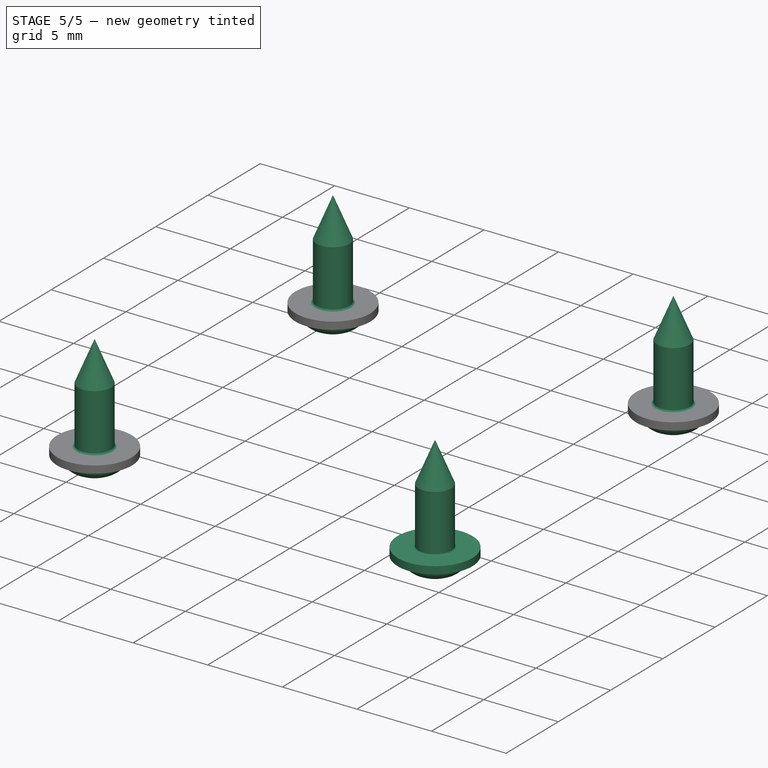
[diagram: stage 5 of 5 — iso view after this stage's code; geometry added in this stage tinted green]
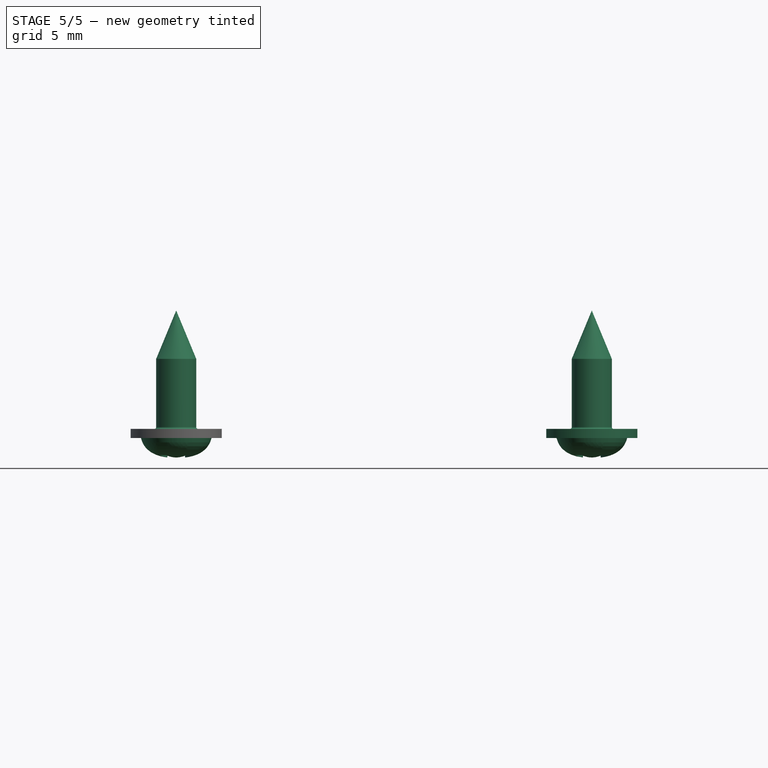
[diagram: stage 5 of 5 — front view after this stage's code; geometry added in this stage tinted green]
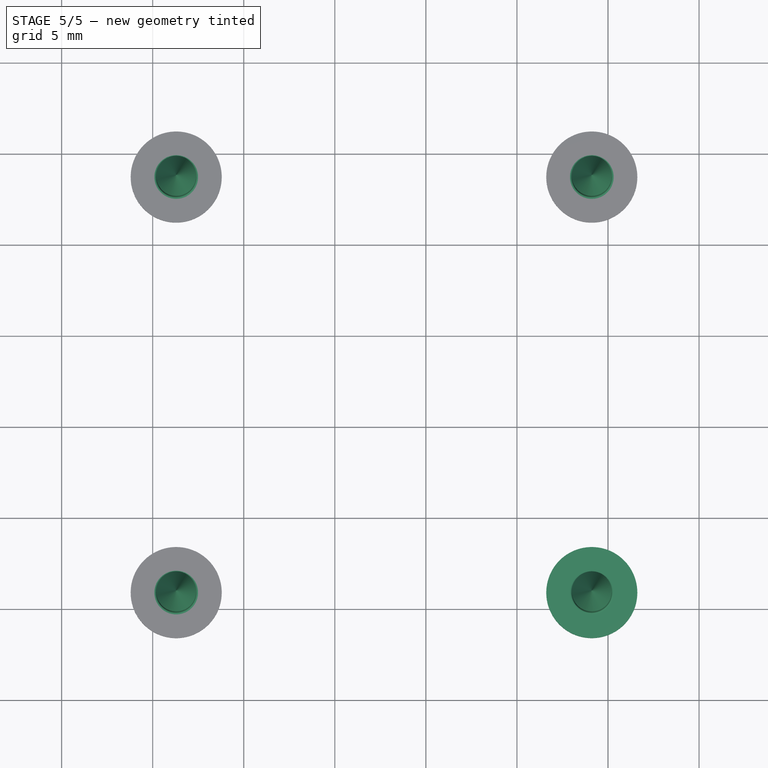
[diagram: stage 5 of 5 — top view after this stage's code; geometry added in this stage tinted green]
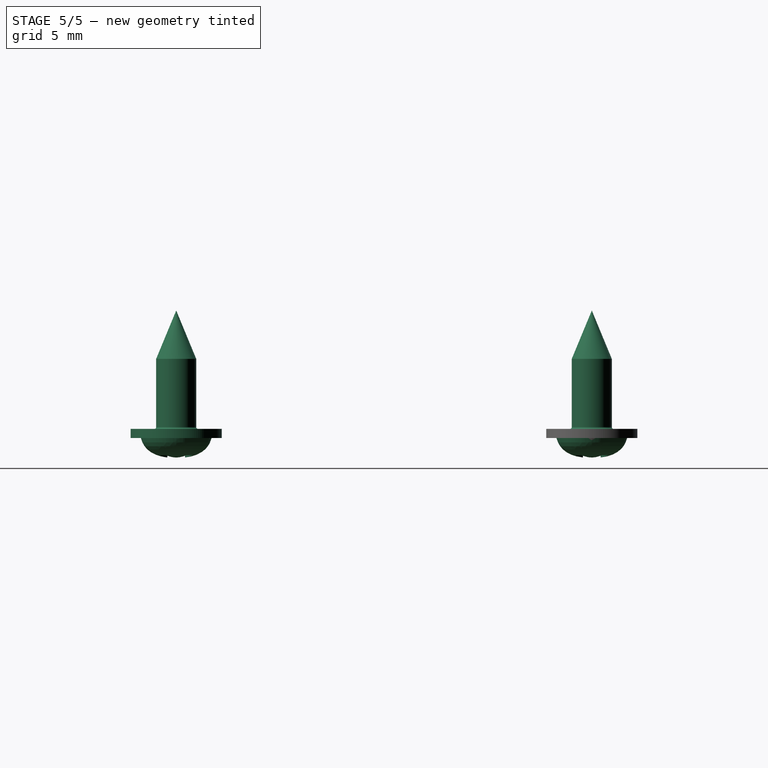
[diagram: stage 5 of 5 — right view after this stage's code; geometry added in this stage tinted green]
FEATURE [PartDesign::Body] Body  label="Cube"
  AllowCompound = false
  Group = -> [Sketch,Pad,Sketch001,Pocket,Sketch002,Pocket001,Sketch003,Pocket002,Sketch004,Pocket003,Sketch005,Pocket004,Sketch006,Pocket005,Chamfer,ShapeString,ShapeString001,ShapeString002,ShapeString003,Pocket006,Pocket007,Pocket008,Pocket009]
  Origin = -> Origin012
  Tip = -> Pocket009
FEATURE [Part::FeaturePython] Screw  label="ST2.2x6.5-Screw"  # WARN: FeaturePython — macro-defined, semantics opaque (R4)
  BaseObject = -> Part001 [Body.Pocket009.Edge46]
  Diameter = 1
  Invert = true
  LeftHanded = false
  Length = 1
  LengthCustom = 6.5
  MatchOuter = false
  Offset = 0.5
  OffsetAngle = 0
  Placement = pos=(24.11,-1.29,-6.9) rot=(-1,0,0;3.14159rad)
  Thread = false
  Type = 81
FEATURE [Part::FeaturePython] Screw001  label="ST2.2x6.5-Screw493"  # WARN: FeaturePython — macro-defined, semantics opaque (R4)
  BaseObject = -> Part001 [Body.Pocket009.Edge29]
  Diameter = 1
  Invert = true
  LeftHanded = false
  Length = 1
  LengthCustom = 6.5
  MatchOuter = false
  Offset = 0.5
  OffsetAngle = 0
  Placement = pos=(1.29,-1.29,-6.9) rot=(-1,0,0;3.14159rad)
  Thread = false
  Type = 81
FEATURE [Part::FeaturePython] Screw002  label="ST2.2x6.5-Screw494"  # WARN: FeaturePython — macro-defined, semantics opaque (R4)
  BaseObject = -> Part001 [Body.Pocket009.Edge27]
  Diameter = 1
  Invert = true
  LeftHanded = false
  Length = 1
  LengthCustom = 6.5
  MatchOuter = false
  Offset = 0.5
  OffsetAngle = 0
  Placement = pos=(1.29,-24.11,-6.9) rot=(-1,0,0;3.14159rad)
  Thread = false
  Type = 81
FEATURE [Part::FeaturePython] Screw003  label="ST2.2x6.5-Screw495"  # WARN: FeaturePython — macro-defined, semantics opaque (R4)
  BaseObject = -> Part001 [Body.Pocket009.Edge28]
  Diameter = 1
  Invert = true
  LeftHanded = false
  Length = 1
  LengthCustom = 6.5
  MatchOuter = false
  Offset = 0.5
  OffsetAngle = 0
  Placement = pos=(24.11,-24.11,-6.9) rot=(-1,0,0;3.14159rad)
  Thread = false
  Type = 81
FEATURE [App::Part] Part003  label="ButtonElements"
  Group = -> [Body002,Screw004]
  Origin = -> Origin016
FEATURE [App::Part] Part001  label="Housing"
  Group = -> [Body,Body001,Part003]
  Origin = -> Origin001
FEATURE [PartDesign::CoordinateSystem] Local_CS_1096
  AttacherType = Attacher::AttachEngine3D
  MapMode = 2
FEATURE [Part::Feature] Pcb_1096
  Placement = pos=(-101.6,76.2,0) rot=(0,0,1;0rad)
  shape: bbox 25.4 x 25.4 x 1.6 mm, 10 faces (baked)
FEATURE [Sketcher::SketchObject] PCB_Sketch_1096
  ArcFitTolerance = 1e-06
  FullyConstrained = false
  MakeInternals = false
  sketch-geometry (8):
    g0: LineSegment StartX=25.4 StartY=-20.32 StartZ=0 EndX=20.32 EndY=-25.4 EndZ=0
    g1: LineSegment StartX=25.4 StartY=-5.08 StartZ=0 EndX=25.4 EndY=-20.32 EndZ=0
    g2: LineSegment StartX=0 StartY=-5.08 StartZ=0 EndX=5.08 EndY=0 EndZ=0
    g3: LineSegment StartX=5.08 StartY=-25.4 StartZ=0 EndX=0 EndY=-20.32 EndZ=0
    g4: LineSegment StartX=20.32 StartY=-25.4 StartZ=0 EndX=5.08 EndY=-25.4 EndZ=0
    g5: LineSegment StartX=5.08 StartY=0 StartZ=0 EndX=20.32 EndY=0 EndZ=0
    g6: LineSegment StartX=0 StartY=-20.32 StartZ=0 EndX=0 EndY=-5.08 EndZ=0
    g7: LineSegment StartX=20.32 StartY=0 StartZ=0 EndX=25.4 EndY=-5.08 EndZ=0
  constraints (8):
    c: Coincident(g3,g6)
    c: Coincident(g2,g6)
    c: Coincident(g3,g4)
    c: Coincident(g2,g5)
    c: Coincident(g0,g4)
    c: Coincident(g5,g7)
    c: Coincident(g0,g1)
    c: Coincident(g1,g7)
FEATURE [App::Part] Board_Geoms_1096
  Group = -> [Pcb_1096,PCB_Sketch_1096]
  Origin = -> Origin017
FEATURE [Part::Feature] Shape  label="R2_R_1206_3216Metric_a244ae71ee7f"
  Placement = pos=(14.224,-20.066,0) rot=(0,0,1;0rad)
  shape: bbox 3.2 x 1.6 x 0.55 mm, 26 faces (baked)
FEATURE [Part::Feature] Shape001  label="D2_LED_RGB_5050_6_3082613c1204"
  Placement = pos=(6.985,-20.32,0) rot=(0,0,1;3.14159rad)
  shape: bbox 5.4 x 5 x 1.6 mm, 100 faces (baked)
FEATURE [Part::Feature] Shape002  label="C2_C_1206_3216Metric_b2c0b2178a0f"
  Placement = pos=(11.987,-3.38,0) rot=(0,0,1;3.14159rad)
  shape: bbox 3.2 x 1.6 x 1.6 mm, 28 faces (baked)
FEATURE [Part::Feature] Shape003  label="C3_C_1206_3216Metric_2d6a083c182e"
  Placement = pos=(4.585,-15.035,0) rot=(0,0,1;1.5708rad)
  shape: bbox 1.6 x 3.2 x 1.6 mm, 28 faces (baked)
FEATURE [Part::Feature] Shape004  label="U1_SOIC_8_39x49mm_P127mm_ced3e6da737e"
  Placement = pos=(19.812,-14.605,0) rot=(0,0,1;1.5708rad)
  shape: bbox 4.9 x 6 x 1.75 mm, 156 faces (baked)
FEATURE [Part::Feature] Shape005  label="SW1_1_b49bc00616b6"
  Placement = pos=(15.1,-10.45,0) rot=(0,0.707107,0.707107;3.14159rad)
  shape: bbox 4.65 x 4.5 x 0.55 mm, 126 faces (baked)
FEATURE [Part::Feature] Shape006  label="R3_R_1206_3216Metric_352e77470e97"
  Placement = pos=(8.3566,-13.1933,0) rot=(0,0,1;1.5708rad)
  shape: bbox 1.6 x 3.2 x 0.55 mm, 26 faces (baked)
FEATURE [Part::Feature] Shape007  label="C1_C_1206_3216Metric_55e30c71a8e1"
  Placement = pos=(14.224,-17.08,0) rot=(0,0,1;3.14159rad)
  shape: bbox 3.2 x 1.6 x 1.6 mm, 28 faces (baked)
FEATURE [Part::Feature] Shape008  label="R1_R_1206_3216Metric_4fa9a57fca02"
  Placement = pos=(20.6395,-20.066,0) rot=(0,0,1;0rad)
  shape: bbox 3.2 x 1.6 x 0.55 mm, 26 faces (baked)
FEATURE [Part::Feature] Shape009  label="D1_LED_RGB_5050_6_e07a5316f1e2"
  Placement = pos=(18.415,-5.08,0) rot=(0,0,1;3.14159rad)
  shape: bbox 5.4 x 5 x 1.6 mm, 100 faces (baked)
FEATURE [App::Part] Top_1096
  Group = -> [Shape,Shape001,Shape002,Shape003,Shape004,Shape005,Shape006,Shape007,Shape008,Shape009]
  Origin = -> Origin020
FEATURE [Part::Feature] Part__Feature  label="BH-67D-5_BH-67D-5"
  Placement = pos=(0,0,0.26) rot=(0,0,1;0rad)
  shape: bbox 24.1 x 3.601 x 15.58 mm, 260 faces (baked)
FEATURE [App::Part] BH_67D_5  label="BT1_BH-67D-5_bce76342ccd1"
  Group = -> [Part__Feature]
  Origin = -> Origin025
  Placement = pos=(12.7,-12.7,-1.6) rot=(0,0.707107,-0.707107;3.14159rad)
FEATURE [Part::Feature] Part__Feature001  label="Part 2"
  shape: bbox 20.13 x 20.13 x 2 mm, 6 faces (baked)
FEATURE [Part::Feature] Part__Feature002  label="Part 3"
  shape: bbox 19.16 x 19.16 x 2.6 mm, 612 faces (baked)
FEATURE [Part::Feature] Part__Feature003  label="Part 1"
  shape: bbox 21.65 x 21.65 x 2.57 mm, 361 faces (baked)
FEATURE [App::Part] CR2032  label="BT1_CR2032_bce76342ccd1[2]"
  Group = -> [Part__Feature001,Part__Feature002,Part__Feature003]
  Origin = -> Origin026
  Placement = pos=(12.7,-12.7,-4.8) rot=(0,0,1;0rad)
FEATURE [App::Part] Bot_1096
  Group = -> [BH_67D_5,CR2032]
  Origin = -> Origin021
FEATURE [App::Part] Step_Models_1096
  Group = -> [Top_1096,Bot_1096]
  Origin = -> Origin019
FEATURE [App::Part] Board_1096  label="RCC"
  Group = -> [Local_CS_1096,Board_Geoms_1096,Step_Models_1096]
  Origin = -> Origin018
FEATURE [App::Part] Part  label="PCB"
  Group = -> [Board_1096]
  Origin = -> Origin
FEATURE [Part::FeaturePython] Washer  label="M2.5-Washer"  # WARN: FeaturePython — macro-defined, semantics opaque (R4)
  BaseObject = -> Part001 [Body.Pocket009.Edge28]
  Diameter = 3
  Invert = true
  MatchOuter = false
  OffsetAngle = 0
  Placement = pos=(24.11,-24.11,-6.9) rot=(-1,0,0;3.14159rad)
  Type = 10
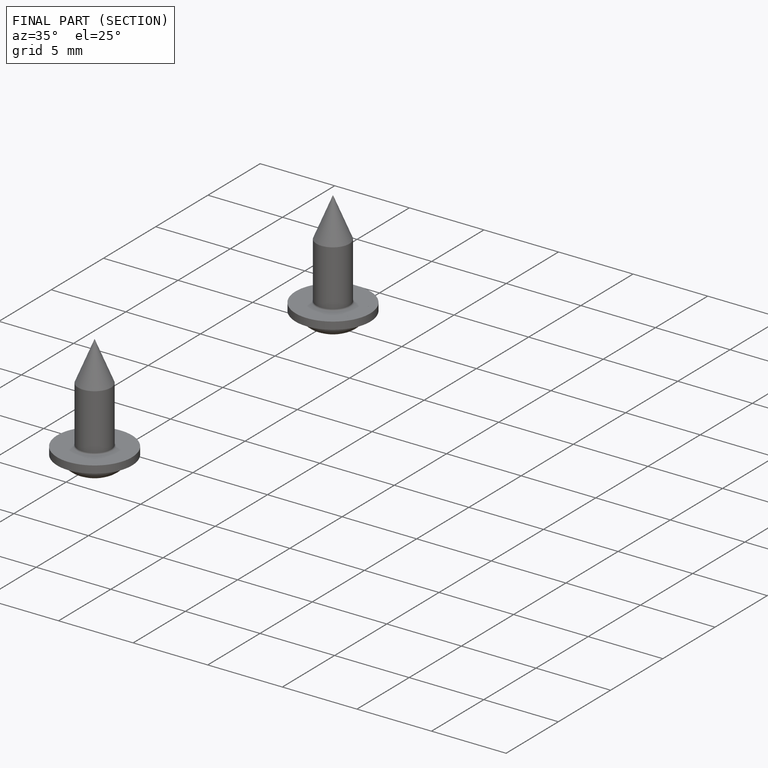
[diagram: finished part — half-section view (interior)]
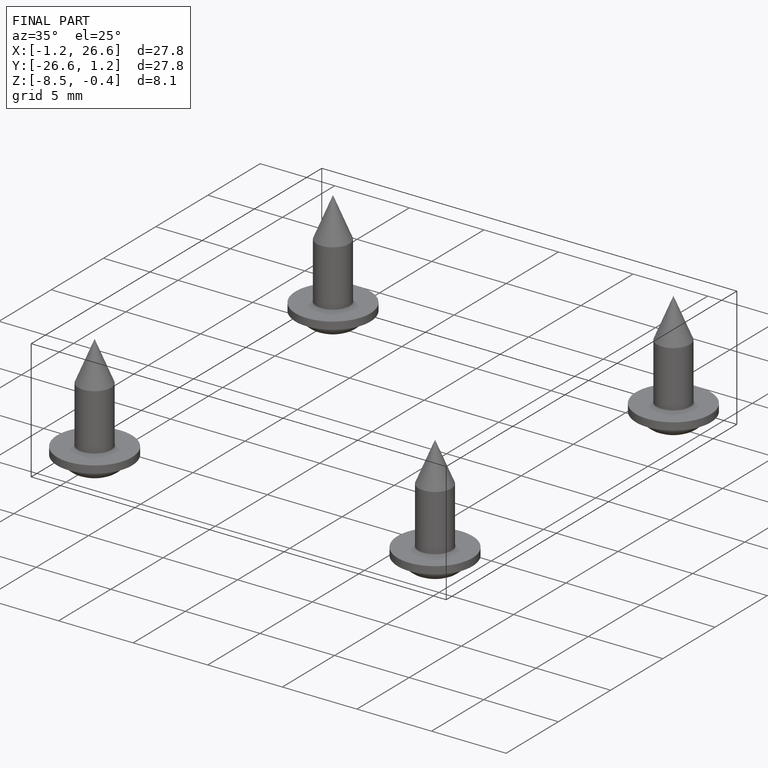
[diagram: finished part — iso view with bounding-box wireframe]
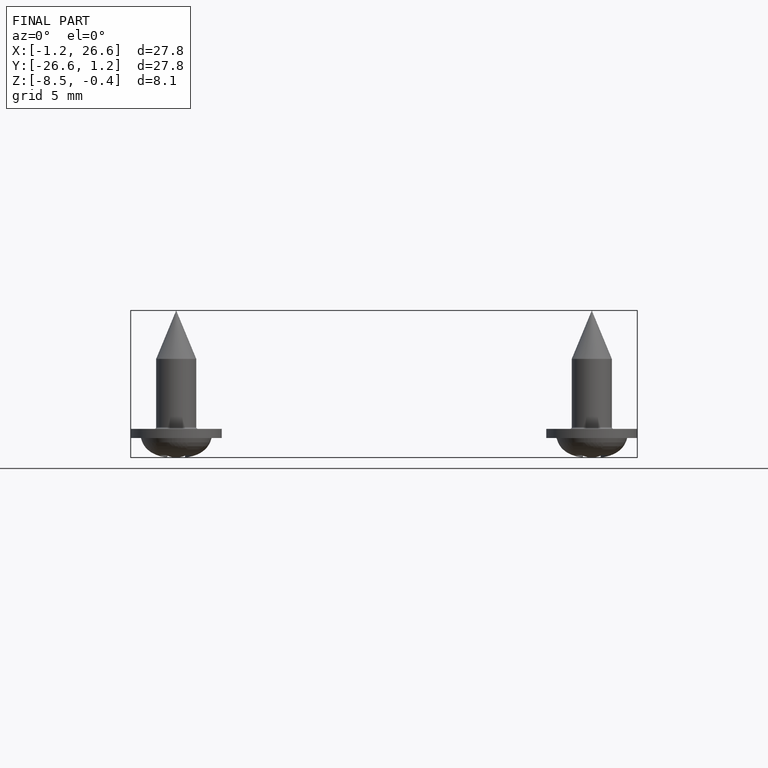
[diagram: finished part — front view with bounding-box wireframe]
